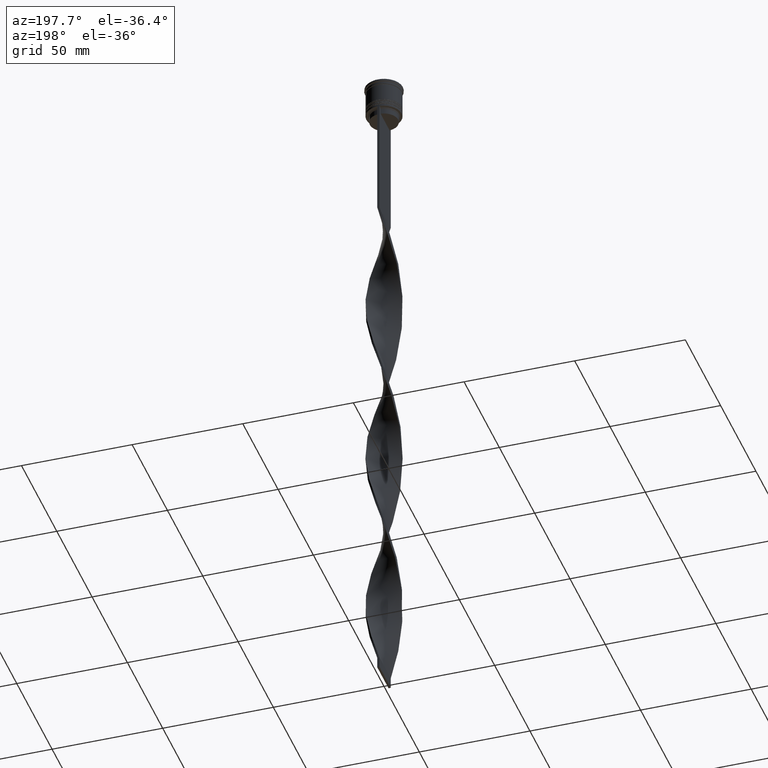
[diagram: clean part render]
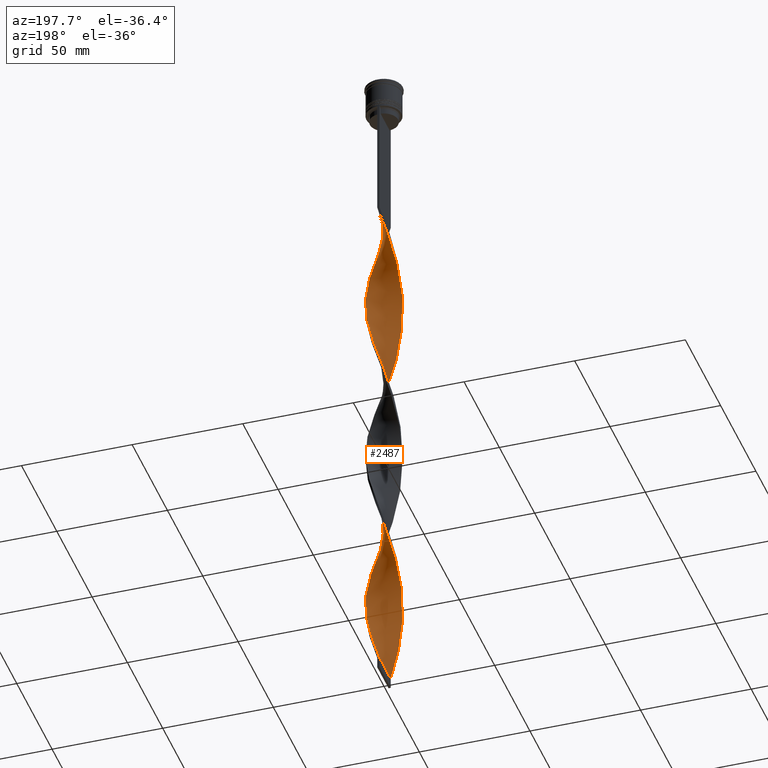
[diagram: same view with one face highlighted and labeled with its STEP entity id]
A machine part, auxiliary view. The second image highlights one B-rep face of the part: STEP entity #2487.
In plain terms, the highlighted face is a freeform B-spline surface patch.
Its self-contained STEP definition (entity closure, byte-faithful):
#10 = CARTESIAN_POINT ( 'NONE',  ( -6.427786469485477383, -4.830271518912636175, -286.9083333333333599 ) ) ;
#15 = CARTESIAN_POINT ( 'NONE',  ( -2.947664213147155543, -7.453943633173751415, -140.3000000000000114 ) ) ;
#26 = CARTESIAN_POINT ( 'NONE',  ( -7.920097061150121576, -1.385649445451607509, -274.8583333333332916 ) ) ;
#45 = CARTESIAN_POINT ( 'NONE',  ( -7.823289492240983023, 1.745319890619415837, -264.8166666666667197 ) ) ;
#47 = CARTESIAN_POINT ( 'NONE',  ( 7.221957428453231742, 3.534302299652429813, -118.2083333333333286 ) ) ;
#71 = CARTESIAN_POINT ( 'NONE',  ( 1.129613654596953065, 7.960649146587686964, -226.6583333333333883 ) ) ;
#73 = CARTESIAN_POINT ( 'NONE',  ( 1.385649445451610617, 7.920097061150129569, -142.3083333333333371 ) ) ;
#78 = CARTESIAN_POINT ( 'NONE',  ( -0.1296136545969472920, 8.039350853412308595, -70.00833333333335418 ) ) ;
#88 = CARTESIAN_POINT ( 'NONE',  ( 4.620552220368689511, -6.580156458821115883, -82.05833333333335133 ) ) ;
#91 = CARTESIAN_POINT ( 'NONE',  ( -5.593028810685829910, -5.776330198885572642, -290.9250000000000682 ) ) ;
#93 = CARTESIAN_POINT ( 'NONE',  ( 7.823289492240990128, 1.745319890619416059, -112.1833333333333229 ) ) ;
#98 = CARTESIAN_POINT ( 'NONE',  ( 7.605824193947274381, 2.607565948252397625, -198.5416666666666856 ) ) ;
#107 = CARTESIAN_POINT ( 'NONE',  ( 1.129613654596948180, -7.960649146587693181, -70.00833333333335418 ) ) ;
#110 = CARTESIAN_POINT ( 'NONE',  ( 1.745319890619417169, 7.823289492240981247, -224.6500000000000057 ) ) ;
#112 = CARTESIAN_POINT ( 'NONE',  ( -7.605824193947280598, 2.607565948252403398, -178.4583333333333428 ) ) ;
#122 = CARTESIAN_POINT ( 'NONE',  ( -6.178243328853340266, 5.106790515527257490, -252.7666666666667084 ) ) ;
#133 = CARTESIAN_POINT ( 'NONE',  ( -7.104270692806159637, 3.765275523391984347, -174.4416666666666629 ) ) ;
#143 = CARTESIAN_POINT ( 'NONE',  ( 7.762960627548699755, 1.996607696851999680, -196.5333333333333314 ) ) ;
#151 = CARTESIAN_POINT ( 'NONE',  ( 7.685929837894287076, 2.361026126641884382, -274.8583333333332916 ) ) ;
#155 = CARTESIAN_POINT ( 'NONE',  ( -7.685929837894287964, -2.361026126641879941, -194.5250000000000341 ) ) ;
#162 = CARTESIAN_POINT ( 'NONE',  ( 6.766028581145814513, 4.297773521152307374, -204.5666666666666629 ) ) ;
#170 = CARTESIAN_POINT ( 'NONE',  ( 6.766028581145818954, -4.297773521152313592, -252.7666666666667084 ) ) ;
#174 = CARTESIAN_POINT ( 'NONE',  ( 5.776330198885578859, 5.593028810685832575, -126.2416666666666600 ) ) ;
#197 = CARTESIAN_POINT ( 'NONE',  ( -7.920097061150128681, 1.385649445451607509, -182.4749999999999943 ) ) ;
#212 = CARTESIAN_POINT ( 'NONE',  ( 7.960649146587693181, 1.129613654596947736, -270.8416666666666401 ) ) ;
#215 = CARTESIAN_POINT ( 'NONE',  ( 6.766028581145818954, -4.297773521152313592, -92.09999999999999432 ) ) ;
#234 = CARTESIAN_POINT ( 'NONE',  ( 8.039350853412315701, -0.1296136545969482357, -266.8249999999999886 ) ) ;
#241 = CARTESIAN_POINT ( 'NONE',  ( -3.765275523391982571, 7.104270692806153420, -82.05833333333336554 ) ) ;
#242 = CARTESIAN_POINT ( 'NONE',  ( -7.920097061150122464, -1.385649445451607287, -274.8583333333332916 ) ) ;
#262 = CARTESIAN_POINT ( 'NONE',  ( 1.996607696852000124, -7.762960627548699755, -156.3666666666666458 ) ) ;
#278 = CARTESIAN_POINT ( 'NONE',  ( -6.178243328853346483, -5.106790515527260155, -204.5666666666666629 ) ) ;
#286 = CARTESIAN_POINT ( 'NONE',  ( 1.385649445451607065, -7.920097061150121576, -154.3583333333332916 ) ) ;
#298 = CARTESIAN_POINT ( 'NONE',  ( -1.385649445451607953, -7.920097061150128681, -222.6416666666667084 ) ) ;
#303 = VERTEX_POINT ( 'NONE', #2714 ) ;
#305 = CARTESIAN_POINT ( 'NONE',  ( -7.685929837894279082, 2.361026126641883938, -102.1416666666666941 ) ) ;
#325 = CARTESIAN_POINT ( 'NONE',  ( -4.297773521152309151, 6.766028581145814513, -84.06666666666667709 ) ) ;
#343 = CARTESIAN_POINT ( 'NONE',  ( 6.427786469485477383, 4.830271518912640616, -206.5750000000000171 ) ) ;
#348 = CARTESIAN_POINT ( 'NONE',  ( 0.1296136545969461817, -8.039350853412306819, -150.3416666666666401 ) ) ;
#354 = CARTESIAN_POINT ( 'NONE',  ( 6.427786469485482712, -4.830271518912641504, -90.09166666666666856 ) ) ;
#357 = CARTESIAN_POINT ( 'NONE',  ( -3.186420735822188544, 7.355047443376713900, -240.7166666666666686 ) ) ;
#359 = CARTESIAN_POINT ( 'NONE',  ( -3.765275523391984791, -7.104270692806157861, -214.6083333333333769 ) ) ;
#377 = CARTESIAN_POINT ( 'NONE',  ( -0.5000000000000011102, -7.999999999999996447, -309.0000000000000000 ) ) ;
#379 = CARTESIAN_POINT ( 'NONE',  ( 6.580156458821115883, 4.620552220368689511, -122.2250000000000085 ) ) ;
#403 = CARTESIAN_POINT ( 'NONE',  ( -5.303300858899103964, 6.010407640085652758, -248.7500000000000000 ) ) ;
#405 = CARTESIAN_POINT ( 'NONE',  ( -7.960649146587693181, -1.129613654596950401, -190.5083333333333542 ) ) ;
#410 = CARTESIAN_POINT ( 'NONE',  ( 5.593028810685831687, 5.776330198885569089, -210.5916666666666686 ) ) ;
#421 = CARTESIAN_POINT ( 'NONE',  ( -7.960649146587686964, 1.129613654596948402, -266.8249999999999886 ) ) ;
#423 = CARTESIAN_POINT ( 'NONE',  ( 2.607565948252399401, 7.605824193947282374, -138.2916666666667140 ) ) ;
#429 = CARTESIAN_POINT ( 'NONE',  ( 7.453943633173751415, -2.947664213147155987, -180.4666666666666686 ) ) ;
#438 = CARTESIAN_POINT ( 'NONE',  ( 7.453943633173759409, 2.947664213147156431, -116.2000000000000028 ) ) ;
#441 = CARTESIAN_POINT ( 'NONE',  ( -5.776330198885577083, -5.593028810685835239, -206.5750000000000171 ) ) ;
#447 = CARTESIAN_POINT ( 'NONE',  ( 7.355047443376714789, 3.186420735822187655, -200.5500000000000114 ) ) ;
#455 = CARTESIAN_POINT ( 'NONE',  ( 7.453943633173759409, 2.947664213147156431, -276.8666666666667311 ) ) ;
#460 = CARTESIAN_POINT ( 'NONE',  ( -1.745319890619415393, 7.823289492240990128, -152.3499999999999943 ) ) ;
#472 = CARTESIAN_POINT ( 'NONE',  ( 4.297773521152308263, -6.766028581145814513, -164.3999999999999773 ) ) ;
#480 = CARTESIAN_POINT ( 'NONE',  ( 6.427786469485483600, -4.830271518912642392, -90.09166666666666856 ) ) ;
#495 = CARTESIAN_POINT ( 'NONE',  ( 4.077427260010559884, -6.901056943637173369, -240.7166666666666686 ) ) ;
#498 = CARTESIAN_POINT ( 'NONE',  ( -6.427786469485480936, 4.830271518912646833, -170.4250000000000398 ) ) ;
#516 = CARTESIAN_POINT ( 'NONE',  ( 7.104270692806156973, -3.765275523391986567, -254.7749999999999773 ) ) ;
#522 = CARTESIAN_POINT ( 'NONE',  ( -7.960649146587693181, -1.129613654596950623, -190.5083333333333826 ) ) ;
#537 = CARTESIAN_POINT ( 'NONE',  ( 0.5000000000000001110, -8.000000000000003553, -68.00000000000000000 ) ) ;
#543 = CARTESIAN_POINT ( 'NONE',  ( 1.129613654596948402, -7.960649146587693181, -230.6750000000000114 ) ) ;
#549 = CARTESIAN_POINT ( 'NONE',  ( -2.361026126641883938, -7.685929837894279082, -142.3083333333333371 ) ) ;
#550 = CARTESIAN_POINT ( 'NONE',  ( -7.999999999999996447, 0.5000000000000006661, -268.8333333333333712 ) ) ;
#560 = CARTESIAN_POINT ( 'NONE',  ( 1.996607696852004121, 7.762960627548705084, -300.9666666666666401 ) ) ;
#568 = CARTESIAN_POINT ( 'NONE',  ( -1.996607696852001013, 7.762960627548698866, -76.03333333333334565 ) ) ;
#588 = CARTESIAN_POINT ( 'NONE',  ( -6.427786469485477383, -4.830271518912637063, -126.2416666666666600 ) ) ;
#597 = DIRECTION ( 'NONE',  ( 0.000000000000000000, 1.000000000000000000, 0.000000000000000000 ) ) ;
#598 = CARTESIAN_POINT ( 'NONE',  ( -0.4999999999999991673, 8.000000000000003553, -309.0000000000000000 ) ) ;
#601 = CARTESIAN_POINT ( 'NONE',  ( 4.297773521152314480, 6.766028581145818066, -292.9333333333333371 ) ) ;
#608 = CARTESIAN_POINT ( 'NONE',  ( 0.1296136545969461817, -8.039350853412308595, -150.3416666666666401 ) ) ;
#609 = CARTESIAN_POINT ( 'NONE',  ( -5.106790515527258378, -6.178243328853339378, -292.9333333333333371 ) ) ;
#616 = CARTESIAN_POINT ( 'NONE',  ( -7.221957428453224637, 3.534302299652428037, -98.12500000000001421 ) ) ;
#617 = CARTESIAN_POINT ( 'NONE',  ( 1.385649445451610617, 7.920097061150129569, -302.9750000000000227 ) ) ;
#627 = CARTESIAN_POINT ( 'NONE',  ( -4.077427260010557220, -6.901056943637166263, -136.2833333333333314 ) ) ;
#634 = CARTESIAN_POINT ( 'NONE',  ( -3.765275523391982126, 7.104270692806152532, -82.05833333333335133 ) ) ;
#648 = CARTESIAN_POINT ( 'NONE',  ( 4.620552220368685070, 6.580156458821110554, -214.6083333333333769 ) ) ;
#656 = CARTESIAN_POINT ( 'NONE',  ( -7.762960627548699755, -1.996607696852000569, -116.2000000000000028 ) ) ;
#665 = CARTESIAN_POINT ( 'NONE',  ( 3.534302299652430257, -7.221957428453231742, -78.04166666666667140 ) ) ;
#669 = CARTESIAN_POINT ( 'NONE',  ( 2.361026126641881717, 7.685929837894279970, -222.6416666666667084 ) ) ;
#672 = CARTESIAN_POINT ( 'NONE',  ( -6.010407640085656311, 5.303300858899110182, -168.4166666666666572 ) ) ;
#678 = CARTESIAN_POINT ( 'NONE',  ( -7.605824193947275269, -2.607565948252395405, -118.2083333333333286 ) ) ;
#689 = CARTESIAN_POINT ( 'NONE',  ( -2.361026126641883938, -7.685929837894279082, -302.9750000000000227 ) ) ;
#691 = CARTESIAN_POINT ( 'NONE',  ( 7.605824193947282374, -2.607565948252398957, -98.12500000000001421 ) ) ;
#704 = CARTESIAN_POINT ( 'NONE',  ( 5.593028810685831687, 5.776330198885569089, -210.5916666666666686 ) ) ;
#706 = CARTESIAN_POINT ( 'NONE',  ( -7.762960627548705084, 1.996607696852004565, -180.4666666666666686 ) ) ;
#715 = CARTESIAN_POINT ( 'NONE',  ( 4.077427260010558108, 6.901056943637166263, -216.6166666666666742 ) ) ;
#730 = CARTESIAN_POINT ( 'NONE',  ( 0.5000000000000001110, 7.999999999999996447, -228.6666666666666856 ) ) ;
#732 = CARTESIAN_POINT ( 'NONE',  ( 6.901056943637173369, 4.077427260010559884, -120.2166666666666686 ) ) ;
#738 = CARTESIAN_POINT ( 'NONE',  ( 1.745319890619417169, 7.823289492240981247, -224.6500000000000057 ) ) ;
#749 = CARTESIAN_POINT ( 'NONE',  ( 2.607565948252399401, 7.605824193947281486, -138.2916666666667140 ) ) ;
#752 = CARTESIAN_POINT ( 'NONE',  ( -8.039350853412315701, 0.1296136545969528431, -186.4916666666667027 ) ) ;
#758 = CARTESIAN_POINT ( 'NONE',  ( 7.920097061150122464, 1.385649445451603068, -194.5250000000000341 ) ) ;
#765 = CARTESIAN_POINT ( 'NONE',  ( 7.920097061150129569, -1.385649445451610173, -262.8083333333333371 ) ) ;
#769 = CARTESIAN_POINT ( 'NONE',  ( 7.762960627548705084, -1.996607696852003677, -100.1333333333333400 ) ) ;
#776 = CARTESIAN_POINT ( 'NONE',  ( 2.607565948252394517, -7.605824193947277045, -158.3750000000000284 ) ) ;
#786 = CARTESIAN_POINT ( 'NONE',  ( 2.361026126641884826, -7.685929837894286187, -234.6916666666666629 ) ) ;
#791 = CARTESIAN_POINT ( 'NONE',  ( 0.1296136545969488185, 8.039350853412315701, -146.3250000000000171 ) ) ;
#803 = ORIENTED_EDGE ( 'NONE', *, *, #867, .T. ) ;
#808 = CARTESIAN_POINT ( 'NONE',  ( 7.221957428453231742, 3.534302299652429813, -118.2083333333333144 ) ) ;
#825 = CARTESIAN_POINT ( 'NONE',  ( 3.186420735822192984, 7.355047443376719229, -136.2833333333333314 ) ) ;
#847 = CARTESIAN_POINT ( 'NONE',  ( -7.453943633173759409, -2.947664213147155543, -196.5333333333333314 ) ) ;
#856 = CARTESIAN_POINT ( 'NONE',  ( -1.996607696852001013, 7.762960627548698866, -236.6999999999999886 ) ) ;
#867 = EDGE_CURVE ( 'NONE', #2590, #915, #3186, .T. ) ;
#868 = CARTESIAN_POINT ( 'NONE',  ( 3.765275523391987011, 7.104270692806157861, -294.9416666666667197 ) ) ;
#876 = CARTESIAN_POINT ( 'NONE',  ( -1.129613654596948624, -7.960649146587686964, -306.9916666666667879 ) ) ;
#895 = CARTESIAN_POINT ( 'NONE',  ( -2.607565948252395849, 7.605824193947274381, -78.04166666666667140 ) ) ;
#896 = CARTESIAN_POINT ( 'NONE',  ( -6.010407640085651870, -5.303300858899103076, -288.9166666666666856 ) ) ;
#907 = CARTESIAN_POINT ( 'NONE',  ( 6.427786469485483600, -4.830271518912642392, -250.7583333333333258 ) ) ;
#915 = VERTEX_POINT ( 'NONE', #2445 ) ;
#917 = CARTESIAN_POINT ( 'NONE',  ( 7.453943633173751415, -2.947664213147155987, -180.4666666666666686 ) ) ;
#932 = CARTESIAN_POINT ( 'NONE',  ( 1.745319890619416503, -7.823289492240990128, -232.6833333333333371 ) ) ;
#940 = CARTESIAN_POINT ( 'NONE',  ( -5.776330198885572642, 5.593028810685829022, -90.09166666666666856 ) ) ;
#960 = CARTESIAN_POINT ( 'NONE',  ( 4.297773521152308263, -6.766028581145814513, -164.3999999999999773 ) ) ;
#979 = CARTESIAN_POINT ( 'NONE',  ( 6.010407640085652758, 5.303300858899102188, -208.5833333333333428 ) ) ;
#982 = CARTESIAN_POINT ( 'NONE',  ( -2.361026126641883938, 7.685929837894287076, -154.3583333333333201 ) ) ;
#990 = CARTESIAN_POINT ( 'NONE',  ( -3.534302299652428481, -7.221957428453224637, -138.2916666666667140 ) ) ;
#1004 = CARTESIAN_POINT ( 'NONE',  ( -4.620552220368686847, -6.580156458821108778, -294.9416666666667197 ) ) ;
#1006 = CARTESIAN_POINT ( 'NONE',  ( 8.039350853412315701, -0.1296136545969482634, -106.1583333333333456 ) ) ;
#1024 = CARTESIAN_POINT ( 'NONE',  ( 4.077427260010558108, 6.901056943637166263, -216.6166666666666742 ) ) ;
#1026 = CARTESIAN_POINT ( 'NONE',  ( -1.745319890619415393, 7.823289492240990128, -152.3499999999999943 ) ) ;
#1031 = CARTESIAN_POINT ( 'NONE',  ( 0.5000000000000001110, 7.999999999999996447, -68.00000000000000000 ) ) ;
#1042 = CARTESIAN_POINT ( 'NONE',  ( -7.221957428453224637, 3.534302299652428037, -258.7916666666666288 ) ) ;
#1044 = CARTESIAN_POINT ( 'NONE',  ( 5.776330198885578859, 5.593028810685832575, -126.2416666666666742 ) ) ;
#1053 = CARTESIAN_POINT ( 'NONE',  ( 6.178243328853339378, -5.106790515527258378, -172.4333333333333371 ) ) ;
#1064 = CARTESIAN_POINT ( 'NONE',  ( 2.947664213147156875, -7.453943633173757632, -76.03333333333334565 ) ) ;
#1066 = CARTESIAN_POINT ( 'NONE',  ( 3.534302299652430257, -7.221957428453231742, -78.04166666666667140 ) ) ;
#1069 = CARTESIAN_POINT ( 'NONE',  ( -7.221957428453230854, -3.534302299652431589, -198.5416666666666856 ) ) ;
#1077 = CARTESIAN_POINT ( 'NONE',  ( 7.685929837894279970, -2.361026126641881273, -182.4749999999999943 ) ) ;
#1086 = CARTESIAN_POINT ( 'NONE',  ( -8.000000000000003553, -0.4999999999999986122, -188.5000000000000000 ) ) ;
#1091 = CARTESIAN_POINT ( 'NONE',  ( 4.620552220368685070, 6.580156458821110554, -214.6083333333333769 ) ) ;
#1102 = CARTESIAN_POINT ( 'NONE',  ( -6.766028581145818066, 4.297773521152314480, -172.4333333333333371 ) ) ;
#1120 = CARTESIAN_POINT ( 'NONE',  ( 7.762960627548705084, -1.996607696852003677, -260.8000000000000114 ) ) ;
#1124 = CARTESIAN_POINT ( 'NONE',  ( -4.077427260010558996, 6.901056943637173369, -160.3833333333333258 ) ) ;
#1142 = CARTESIAN_POINT ( 'NONE',  ( -7.979723957281220414, 0.7576315500242798429, -184.4833333333333201 ) ) ;
#1157 = CARTESIAN_POINT ( 'NONE',  ( 4.830271518912643280, 6.427786469485483600, -290.9250000000000682 ) ) ;
#1164 = CARTESIAN_POINT ( 'NONE',  ( 7.960649146587686964, -1.129613654596952621, -186.4916666666667027 ) ) ;
#1175 = CARTESIAN_POINT ( 'NONE',  ( 5.303300858899110182, 6.010407640085656311, -288.9166666666666856 ) ) ;
#1178 = CARTESIAN_POINT ( 'NONE',  ( 6.901056943637173369, 4.077427260010559884, -280.8833333333333826 ) ) ;
#1188 = CARTESIAN_POINT ( 'NONE',  ( -7.453943633173751415, 2.947664213147155543, -100.1333333333333400 ) ) ;
#1189 = CARTESIAN_POINT ( 'NONE',  ( -0.5000000000000011102, -7.999999999999996447, -309.0000000000000000 ) ) ;
#1200 = CARTESIAN_POINT ( 'NONE',  ( 3.186420735822192984, 7.355047443376719229, -296.9499999999999886 ) ) ;
#1207 = CARTESIAN_POINT ( 'NONE',  ( 5.303300858899103076, -6.010407640085653647, -168.4166666666666572 ) ) ;
#1208 = CARTESIAN_POINT ( 'NONE',  ( -2.361026126641883938, -7.685929837894279082, -302.9750000000000227 ) ) ;
#1219 = CARTESIAN_POINT ( 'NONE',  ( 7.221957428453231742, 3.534302299652429813, -278.8750000000000000 ) ) ;
#1227 = CARTESIAN_POINT ( 'NONE',  ( 6.580156458821111443, -4.620552220368684182, -174.4416666666666629 ) ) ;
#1240 = CARTESIAN_POINT ( 'NONE',  ( 6.580156458821115883, 4.620552220368689511, -282.8916666666667084 ) ) ;
#1241 = CARTESIAN_POINT ( 'NONE',  ( -2.607565948252403842, -7.605824193947280598, -218.6250000000000284 ) ) ;
#1250 = CARTESIAN_POINT ( 'NONE',  ( -1.385649445451607953, 7.920097061150121576, -74.02500000000000568 ) ) ;
#1258 = CARTESIAN_POINT ( 'NONE',  ( -7.104270692806152532, -3.765275523391982126, -122.2250000000000085 ) ) ;
#1271 = CARTESIAN_POINT ( 'NONE',  ( -8.039350853412310371, -0.1296136545969467091, -110.1749999999999972 ) ) ;
#1272 = CARTESIAN_POINT ( 'NONE',  ( -1.745319890619416281, -7.823289492240981247, -304.9833333333333485 ) ) ;
#1276 = CARTESIAN_POINT ( 'NONE',  ( -2.361026126641883938, -7.685929837894279082, -142.3083333333333371 ) ) ;
#1287 = CARTESIAN_POINT ( 'NONE',  ( -7.104270692806153420, -3.765275523391982571, -282.8916666666667084 ) ) ;
#1289 = CARTESIAN_POINT ( 'NONE',  ( -6.580156458821117660, -4.620552220368685958, -202.5583333333333371 ) ) ;
#1296 = CARTESIAN_POINT ( 'NONE',  ( -5.303300858899103964, 6.010407640085652758, -88.08333333333334281 ) ) ;
#1301 = CARTESIAN_POINT ( 'NONE',  ( 0.5000000000000001110, -8.000000000000003553, -68.00000000000000000 ) ) ;
#1309 = CARTESIAN_POINT ( 'NONE',  ( -1.385649445451607953, 7.920097061150121576, -234.6916666666666629 ) ) ;
#1311 = CARTESIAN_POINT ( 'NONE',  ( -4.620552220368688623, 6.580156458821115883, -162.3916666666666799 ) ) ;
#1320 = CARTESIAN_POINT ( 'NONE',  ( -1.996607696852001013, 7.762960627548698866, -76.03333333333334565 ) ) ;
#1332 = CARTESIAN_POINT ( 'NONE',  ( -4.297773521152309151, 6.766028581145814513, -244.7333333333333201 ) ) ;
#1334 = CARTESIAN_POINT ( 'NONE',  ( -5.106790515527260155, 6.178243328853345595, -164.3999999999999773 ) ) ;
#1339 = CARTESIAN_POINT ( 'NONE',  ( -7.920097061150122464, -1.385649445451607287, -114.1916666666666771 ) ) ;
#1350 = CARTESIAN_POINT ( 'NONE',  ( -5.106790515527258378, -6.178243328853339378, -292.9333333333333371 ) ) ;
#1353 = CARTESIAN_POINT ( 'NONE',  ( 3.186420735822192984, 7.355047443376719229, -136.2833333333333314 ) ) ;
#1358 = CARTESIAN_POINT ( 'NONE',  ( 0.5000000000000001110, 7.999999999999996447, -228.6666666666666856 ) ) ;
#1371 = CARTESIAN_POINT ( 'NONE',  ( 7.104270692806155196, 3.765275523391978574, -202.5583333333333371 ) ) ;
#1373 = CARTESIAN_POINT ( 'NONE',  ( -7.979723957281220414, 0.7576315500242798429, -184.4833333333333201 ) ) ;
#1383 = CARTESIAN_POINT ( 'NONE',  ( -6.580156458821108778, 4.620552220368686847, -254.7749999999999773 ) ) ;
#1393 = CARTESIAN_POINT ( 'NONE',  ( 7.685929837894287076, 2.361026126641884382, -114.1916666666666771 ) ) ;
#1400 = CARTESIAN_POINT ( 'NONE',  ( 6.010407640085652758, 5.303300858899102188, -208.5833333333333428 ) ) ;
#1409 = CARTESIAN_POINT ( 'NONE',  ( 6.010407640085658088, -5.303300858899109294, -88.08333333333334281 ) ) ;
#1424 = CARTESIAN_POINT ( 'NONE',  ( 4.077427260010559884, -6.901056943637173369, -80.05000000000001137 ) ) ;
#1443 = CARTESIAN_POINT ( 'NONE',  ( 1.745319890619416503, -7.823289492240990128, -232.6833333333333371 ) ) ;
#1448 = CARTESIAN_POINT ( 'NONE',  ( 2.947664213147156875, -7.453943633173757632, -76.03333333333334565 ) ) ;
#1460 = CARTESIAN_POINT ( 'NONE',  ( 6.901056943637173369, 4.077427260010559884, -280.8833333333333826 ) ) ;
#1463 = CARTESIAN_POINT ( 'NONE',  ( 7.920097061150128681, -1.385649445451610173, -102.1416666666666941 ) ) ;
#1472 = CARTESIAN_POINT ( 'NONE',  ( -1.385649445451607731, 7.920097061150122464, -234.6916666666666629 ) ) ;
#1474 = CARTESIAN_POINT ( 'NONE',  ( -0.5000000000000011102, -7.999999999999996447, -309.0000000000000000 ) ) ;
#1482 = CARTESIAN_POINT ( 'NONE',  ( 0.5000000000000001110, -8.000000000000003553, -228.6666666666666856 ) ) ;
#1490 = CARTESIAN_POINT ( 'NONE',  ( -6.010407640085651870, -5.303300858899103076, -128.2500000000000000 ) ) ;
#1491 = CARTESIAN_POINT ( 'NONE',  ( -7.762960627548699755, -1.996607696852000569, -276.8666666666667311 ) ) ;
#1505 = CARTESIAN_POINT ( 'NONE',  ( -0.1296136545969532317, -8.039350853412315701, -226.6583333333333883 ) ) ;
#1515 = CARTESIAN_POINT ( 'NONE',  ( -7.823289492240983023, 1.745319890619415837, -104.1500000000000057 ) ) ;
#1516 = CARTESIAN_POINT ( 'NONE',  ( -3.534302299652428481, -7.221957428453224637, -298.9583333333333712 ) ) ;
#1525 = CARTESIAN_POINT ( 'NONE',  ( 4.297773521152314480, 6.766028581145818066, -292.9333333333333371 ) ) ;
#1528 = CARTESIAN_POINT ( 'NONE',  ( 7.960649146587693181, 1.129613654596947958, -270.8416666666666401 ) ) ;
#1537 = CARTESIAN_POINT ( 'NONE',  ( -7.355047443376713900, -3.186420735822188544, -120.2166666666666686 ) ) ;
#1549 = CARTESIAN_POINT ( 'NONE',  ( 3.534302299652430257, -7.221957428453231742, -238.7083333333333144 ) ) ;
#1562 = CARTESIAN_POINT ( 'NONE',  ( -4.297773521152309151, 6.766028581145814513, -84.06666666666667709 ) ) ;
#1563 = CARTESIAN_POINT ( 'NONE',  ( 4.830271518912642392, 6.427786469485482712, -290.9250000000000682 ) ) ;
#1569 = CARTESIAN_POINT ( 'NONE',  ( -5.303300858899111070, -6.010407640085655423, -208.5833333333333428 ) ) ;
#1579 = CARTESIAN_POINT ( 'NONE',  ( -7.979723957281215085, -0.7576315500242769563, -112.1833333333333229 ) ) ;
#1586 = CARTESIAN_POINT ( 'NONE',  ( -4.830271518912637063, 6.427786469485478271, -86.07500000000003126 ) ) ;
#1593 = CARTESIAN_POINT ( 'NONE',  ( 5.593028810685833463, -5.776330198885577971, -86.07500000000003126 ) ) ;
#1599 = CARTESIAN_POINT ( 'NONE',  ( -5.776330198885572642, 5.593028810685829022, -250.7583333333333258 ) ) ;
#1617 = CARTESIAN_POINT ( 'NONE',  ( 6.766028581145814513, 4.297773521152307374, -204.5666666666666629 ) ) ;
#1619 = CARTESIAN_POINT ( 'NONE',  ( -5.303300858899111070, -6.010407640085655423, -208.5833333333333428 ) ) ;
#1627 = CARTESIAN_POINT ( 'NONE',  ( -6.766028581145814513, -4.297773521152308263, -124.2333333333333343 ) ) ;
#1639 = ORIENTED_EDGE ( 'NONE', *, *, #3120, .F. ) ;
#1640 =( BOUNDED_CURVE ( )  B_SPLINE_CURVE ( 2, ( #1031, #78, #2257, #2591, #1320, #3504, #2872, #634, #1562, #1586, #1296, #3870, #3465, #3845, #1966, #616, #1948, #3823, #2567, #2608, #3528, #3484, #3229, #1339, #656, #678, #3887, #1258, #1627, #2855, #1883, #3146, #2834, #2528, #1902, #990, #15, #1276, #3210, #1926, #3189, #348, #2933, #2744, #4014, #776, #3317, #3569, #472, #1990, #3608, #3626, #1053, #2341, #3271, #1742, #429, #1077, #2997, #1164, #3590, #1697, #3944, #758, #143, #98, #447, #2433, #162, #3252, #1400, #410, #2669, #1091, #715, #4042, #2006, #1673, #738, #2357, #1358, #2048, #2625, #1472, #856, #3705, #2296, #1722, #2953, #3906, #2026, #2321, #122, #1383, #3293, #2121, #2651, #3389, #2978, #3928, #550, #1815, #3075, #242, #1491, #2763, #2808, #2206, #3141, #10, #896, #2499, #609, #1878, #2867, #1516, #2852, #1208, #1272, #876, #1189 ),
 .UNSPECIFIED., .F., .T. ) 
 B_SPLINE_CURVE_WITH_KNOTS ( ( 3, 2, 2, 2, 2, 2, 2, 2, 2, 2, 2, 2, 2, 2, 2, 2, 2, 2, 2, 2, 2, 2, 2, 2, 2, 2, 2, 2, 2, 2, 2, 2, 2, 2, 2, 2, 2, 2, 2, 2, 2, 2, 2, 2, 2, 2, 2, 2, 2, 2, 2, 2, 2, 2, 2, 2, 2, 2, 2, 2, 3 ),
 ( 0.000000000000000000, 0.01250000000000000243, 0.02500000000000000486, 0.03749999999999999861, 0.05000000000000000971, 0.06250000000000000000, 0.07499999999999999722, 0.08749999999999998057, 0.1000000000000000194, 0.1125000000000000028, 0.1250000000000000000, 0.1375000000000000111, 0.1499999999999999944, 0.1625000000000000056, 0.1749999999999999611, 0.1875000000000000000, 0.2000000000000000389, 0.2124999999999999944, 0.2250000000000000056, 0.2374999999999999611, 0.2500000000000000000, 0.2625000000000000111, 0.2750000000000000222, 0.2874999999999999778, 0.2999999999999999889, 0.3125000000000000000, 0.3250000000000000111, 0.3375000000000000777, 0.3499999999999999223, 0.3624999999999999889, 0.3750000000000000000, 0.3875000000000000111, 0.4000000000000000777, 0.4124999999999999223, 0.4249999999999999889, 0.4375000000000000000, 0.4500000000000000111, 0.4625000000000000777, 0.4749999999999999223, 0.4874999999999999889, 0.5000000000000000000, 0.5124999999999999556, 0.5250000000000000222, 0.5374999999999999778, 0.5500000000000000444, 0.5625000000000000000, 0.5749999999999999556, 0.5875000000000000222, 0.5999999999999999778, 0.6125000000000000444, 0.6250000000000000000, 0.6374999999999999556, 0.6500000000000000222, 0.6624999999999999778, 0.6750000000000001554, 0.6875000000000000000, 0.6999999999999998446, 0.7125000000000000222, 0.7249999999999999778, 0.7375000000000001554, 0.7500000000000000000 ),
 .UNSPECIFIED. ) 
 CURVE ( )  GEOMETRIC_REPRESENTATION_ITEM ( )  RATIONAL_B_SPLINE_CURVE ( ( 1.000000000000000000, 0.9969173337331279638, 1.000000000000000000, 0.9969173337331279638, 1.000000000000000000, 0.9969173337331279638, 1.000000000000000000, 0.9969173337331279638, 1.000000000000000000, 0.9969173337331279638, 1.000000000000000000, 0.9969173337331279638, 1.000000000000000000, 0.9969173337331279638, 1.000000000000000000, 0.9969173337331279638, 1.000000000000000000, 0.9969173337331279638, 1.000000000000000000, 0.9969173337331279638, 1.000000000000000000, 0.9969173337331279638, 1.000000000000000000, 0.9969173337331279638, 1.000000000000000000, 0.9969173337331279638, 1.000000000000000000, 0.9969173337331279638, 1.000000000000000000, 0.9969173337331279638, 1.000000000000000000, 0.9969173337331279638, 1.000000000000000000, 0.9969173337331279638, 1.000000000000000000, 0.9969173337331279638, 1.000000000000000000, 0.9969173337331279638, 1.000000000000000000, 0.9969173337331279638, 1.000000000000000000, 0.9969173337331279638, 1.000000000000000000, 0.9969173337331279638, 1.000000000000000000, 0.9969173337331279638, 1.000000000000000000, 0.9969173337331279638, 1.000000000000000000, 0.9969173337331279638, 1.000000000000000000, 0.9969173337331279638, 1.000000000000000000, 0.9969173337331279638, 1.000000000000000000, 0.9969173337331279638, 1.000000000000000000, 0.9969173337331279638, 1.000000000000000000, 0.9969173337331279638, 1.000000000000000000, 0.9969173337331279638, 1.000000000000000000, 0.9969173337331279638, 1.000000000000000000, 0.9969173337331279638, 1.000000000000000000, 0.9969173337331279638, 1.000000000000000000, 0.9969173337331279638, 1.000000000000000000, 0.9969173337331279638, 1.000000000000000000, 0.9969173337331279638, 1.000000000000000000, 0.9969173337331279638, 1.000000000000000000, 0.9969173337331279638, 1.000000000000000000, 0.9969173337331279638, 1.000000000000000000, 0.9969173337331279638, 1.000000000000000000, 0.9969173337331279638, 1.000000000000000000, 0.9969173337331279638, 1.000000000000000000, 0.9969173337331279638, 1.000000000000000000, 0.9969173337331279638, 1.000000000000000000, 0.9969173337331279638, 1.000000000000000000, 0.9969173337331279638, 1.000000000000000000, 0.9969173337331279638, 1.000000000000000000, 0.9969173337331279638, 1.000000000000000000, 0.9969173337331279638, 1.000000000000000000, 0.9969173337331279638, 1.000000000000000000, 0.9969173337331279638, 1.000000000000000000, 0.9969173337331279638, 1.000000000000000000, 0.9969173337331279638, 1.000000000000000000, 0.9969173337331279638, 1.000000000000000000, 0.9969173337331279638, 1.000000000000000000, 0.9969173337331279638, 1.000000000000000000, 0.9969173337331279638, 1.000000000000000000, 0.9969173337331279638, 1.000000000000000000, 0.9969173337331279638, 1.000000000000000000 ) ) 
 REPRESENTATION_ITEM ( '' )  );
#1641 = CARTESIAN_POINT ( 'NONE',  ( 7.685929837894279970, -2.361026126641881273, -182.4749999999999943 ) ) ;
#1643 = CARTESIAN_POINT ( 'NONE',  ( 4.297773521152314480, 6.766028581145818066, -132.2666666666666799 ) ) ;
#1665 = CARTESIAN_POINT ( 'NONE',  ( -0.7576315500242774004, 7.979723957281215085, -232.6833333333333371 ) ) ;
#1667 = CARTESIAN_POINT ( 'NONE',  ( -7.685929837894287964, -2.361026126641879941, -194.5250000000000341 ) ) ;
#1673 = CARTESIAN_POINT ( 'NONE',  ( 2.361026126641881717, 7.685929837894279970, -222.6416666666667084 ) ) ;
#1687 = CARTESIAN_POINT ( 'NONE',  ( -2.607565948252395849, 7.605824193947274381, -238.7083333333333144 ) ) ;
#1690 = CARTESIAN_POINT ( 'NONE',  ( -4.077427260010558996, 6.901056943637173369, -160.3833333333333258 ) ) ;
#1697 = CARTESIAN_POINT ( 'NONE',  ( 8.039350853412308595, 0.1296136545969493459, -190.5083333333333542 ) ) ;
#1704 = CARTESIAN_POINT ( 'NONE',  ( 7.605824193947282374, -2.607565948252398957, -258.7916666666666288 ) ) ;
#1710 = CARTESIAN_POINT ( 'NONE',  ( -1.129613654596947514, 7.960649146587694958, -150.3416666666666401 ) ) ;
#1713 = CARTESIAN_POINT ( 'NONE',  ( -4.830271518912645945, -6.427786469485479159, -210.5916666666666686 ) ) ;
#1722 = CARTESIAN_POINT ( 'NONE',  ( -3.765275523391982126, 7.104270692806152532, -242.7250000000000227 ) ) ;
#1733 = CARTESIAN_POINT ( 'NONE',  ( -3.534302299652429813, 7.221957428453232630, -158.3750000000000284 ) ) ;
#1742 = CARTESIAN_POINT ( 'NONE',  ( 7.221957428453222860, -3.534302299652431589, -178.4583333333333428 ) ) ;
#1748 = CARTESIAN_POINT ( 'NONE',  ( -0.1296136545969532317, -8.039350853412315701, -226.6583333333333883 ) ) ;
#1751 = CARTESIAN_POINT ( 'NONE',  ( 2.361026126641884826, -7.685929837894286187, -74.02500000000000568 ) ) ;
#1765 = CARTESIAN_POINT ( 'NONE',  ( 1.129613654596948180, -7.960649146587693181, -230.6750000000000114 ) ) ;
#1768 = CARTESIAN_POINT ( 'NONE',  ( -7.355047443376719229, 3.186420735822193429, -176.4499999999999886 ) ) ;
#1786 = CARTESIAN_POINT ( 'NONE',  ( 8.039350853412315701, -0.1296136545969482634, -266.8249999999999886 ) ) ;
#1791 = CARTESIAN_POINT ( 'NONE',  ( -7.823289492240991905, -1.745319890619414949, -192.5166666666666799 ) ) ;
#1796 = CARTESIAN_POINT ( 'NONE',  ( -0.4999999999999997780, 2.666666666666670515, -309.0000000000000000 ) ) ;
#1807 = CARTESIAN_POINT ( 'NONE',  ( 6.010407640085658088, -5.303300858899109294, -248.7500000000000000 ) ) ;
#1814 = CARTESIAN_POINT ( 'NONE',  ( 0.5000000000000001110, 7.999999999999996447, -68.00000000000000000 ) ) ;
#1815 = CARTESIAN_POINT ( 'NONE',  ( -8.039350853412308595, -0.1296136545969467369, -270.8416666666666401 ) ) ;
#1820 = CARTESIAN_POINT ( 'NONE',  ( 0.1296136545969487908, 8.039350853412315701, -306.9916666666667879 ) ) ;
#1822 = CARTESIAN_POINT ( 'NONE',  ( 0.7576315500242793988, 7.979723957281220414, -304.9833333333333485 ) ) ;
#1829 = CARTESIAN_POINT ( 'NONE',  ( -5.303300858899103964, 6.010407640085652758, -88.08333333333334281 ) ) ;
#1843 = VECTOR ( 'NONE', #597, 1000.000000000000000 ) ;
#1845 = CARTESIAN_POINT ( 'NONE',  ( -7.221957428453230854, -3.534302299652432033, -198.5416666666667140 ) ) ;
#1855 = CARTESIAN_POINT ( 'NONE',  ( -7.920097061150121576, -1.385649445451607509, -114.1916666666666771 ) ) ;
#1869 = CARTESIAN_POINT ( 'NONE',  ( 2.607565948252399401, 7.605824193947281486, -298.9583333333334281 ) ) ;
#1877 = CARTESIAN_POINT ( 'NONE',  ( -3.534302299652428481, -7.221957428453224637, -138.2916666666667140 ) ) ;
#1878 = CARTESIAN_POINT ( 'NONE',  ( -4.620552220368686847, -6.580156458821108778, -294.9416666666667197 ) ) ;
#1883 = CARTESIAN_POINT ( 'NONE',  ( -6.010407640085651870, -5.303300858899103076, -128.2500000000000000 ) ) ;
#1889 = CARTESIAN_POINT ( 'NONE',  ( 7.605824193947281486, -2.607565948252398957, -258.7916666666666288 ) ) ;
#1895 = FACE_OUTER_BOUND ( 'NONE', #3654, .T. ) ;
#1902 = CARTESIAN_POINT ( 'NONE',  ( -4.077427260010557220, -6.901056943637166263, -136.2833333333333314 ) ) ;
#1910 = EDGE_CURVE ( 'NONE', #3390, #915, #2600, .T. ) ;
#1919 = CARTESIAN_POINT ( 'NONE',  ( 7.762960627548699755, 1.996607696851999680, -196.5333333333333314 ) ) ;
#1926 = CARTESIAN_POINT ( 'NONE',  ( -1.129613654596948624, -7.960649146587686964, -146.3250000000000171 ) ) ;
#1934 = CARTESIAN_POINT ( 'NONE',  ( 6.010407640085658088, -5.303300858899109294, -88.08333333333334281 ) ) ;
#1939 = CARTESIAN_POINT ( 'NONE',  ( -6.178243328853340266, 5.106790515527257490, -252.7666666666667084 ) ) ;
#1942 = CARTESIAN_POINT ( 'NONE',  ( 7.920097061150129569, -1.385649445451610173, -102.1416666666666799 ) ) ;
#1948 = CARTESIAN_POINT ( 'NONE',  ( -7.453943633173751415, 2.947664213147155543, -100.1333333333333400 ) ) ;
#1957 = CARTESIAN_POINT ( 'NONE',  ( -1.745319890619416281, -7.823289492240981247, -304.9833333333333485 ) ) ;
#1959 = CARTESIAN_POINT ( 'NONE',  ( 7.453943633173759409, 2.947664213147156431, -116.2000000000000028 ) ) ;
#1966 = CARTESIAN_POINT ( 'NONE',  ( -6.901056943637166263, 4.077427260010557220, -96.11666666666667425 ) ) ;
#1970 = ORIENTED_EDGE ( 'NONE', *, *, #3279, .F. ) ;
#1974 = CARTESIAN_POINT ( 'NONE',  ( 0.5000000000000001110, -8.000000000000003553, -68.00000000000000000 ) ) ;
#1978 = CARTESIAN_POINT ( 'NONE',  ( -6.901056943637166263, 4.077427260010557220, -256.7833333333333599 ) ) ;
#1980 = CARTESIAN_POINT ( 'NONE',  ( -8.000000000000003553, -0.4999999999999986122, -188.5000000000000000 ) ) ;
#1990 = CARTESIAN_POINT ( 'NONE',  ( 4.830271518912636175, -6.427786469485478271, -166.4083333333333599 ) ) ;
#1993 = ORIENTED_EDGE ( 'NONE', *, *, #1910, .F. ) ;
#2000 = CARTESIAN_POINT ( 'NONE',  ( -6.766028581145814513, -4.297773521152308263, -284.9000000000000341 ) ) ;
#2002 = CARTESIAN_POINT ( 'NONE',  ( -3.534302299652429813, 7.221957428453232630, -158.3750000000000284 ) ) ;
#2006 = CARTESIAN_POINT ( 'NONE',  ( 2.947664213147156875, 7.453943633173751415, -220.6333333333333542 ) ) ;
#2018 = CARTESIAN_POINT ( 'NONE',  ( 1.129613654596948402, -7.960649146587693181, -70.00833333333335418 ) ) ;
#2021 = CARTESIAN_POINT ( 'NONE',  ( 3.765275523391986567, 7.104270692806156973, -134.2750000000000341 ) ) ;
#2026 = CARTESIAN_POINT ( 'NONE',  ( -5.303300858899103964, 6.010407640085652758, -248.7500000000000000 ) ) ;
#2035 = CARTESIAN_POINT ( 'NONE',  ( 7.979723957281222191, -0.7576315500242788437, -264.8166666666667197 ) ) ;
#2039 = CARTESIAN_POINT ( 'NONE',  ( 1.745319890619416503, -7.823289492240990128, -72.01666666666667993 ) ) ;
#2048 = CARTESIAN_POINT ( 'NONE',  ( -0.1296136545969472920, 8.039350853412308595, -230.6750000000000114 ) ) ;
#2056 = CARTESIAN_POINT ( 'NONE',  ( 3.534302299652430257, -7.221957428453231742, -238.7083333333333144 ) ) ;
#2060 = CARTESIAN_POINT ( 'NONE',  ( 5.303300858899110182, 6.010407640085656311, -128.2500000000000000 ) ) ;
#2076 = CARTESIAN_POINT ( 'NONE',  ( 6.901056943637173369, 4.077427260010559884, -120.2166666666666686 ) ) ;
#2091 = CARTESIAN_POINT ( 'NONE',  ( 7.605824193947281486, -2.607565948252398957, -98.12500000000002842 ) ) ;
#2116 = CARTESIAN_POINT ( 'NONE',  ( -6.901056943637174257, -4.077427260010558996, -200.5500000000000114 ) ) ;
#2121 = CARTESIAN_POINT ( 'NONE',  ( -7.221957428453224637, 3.534302299652428037, -258.7916666666666288 ) ) ;
#2132 = CARTESIAN_POINT ( 'NONE',  ( 6.766028581145818954, -4.297773521152313592, -252.7666666666667084 ) ) ;
#2141 = CARTESIAN_POINT ( 'NONE',  ( -3.186420735822188544, 7.355047443376713900, -80.05000000000001137 ) ) ;
#2153 = CARTESIAN_POINT ( 'NONE',  ( 8.000000000000003553, 0.4999999999999995559, -268.8333333333333712 ) ) ;
#2178 = CARTESIAN_POINT ( 'NONE',  ( 7.104270692806157861, -3.765275523391987011, -254.7749999999999488 ) ) ;
#2187 = CARTESIAN_POINT ( 'NONE',  ( -6.901056943637166263, 4.077427260010557220, -96.11666666666667425 ) ) ;
#2195 = CARTESIAN_POINT ( 'NONE',  ( 3.765275523391986567, 7.104270692806156973, -294.9416666666667197 ) ) ;
#2198 = CARTESIAN_POINT ( 'NONE',  ( 7.762960627548705084, -1.996607696852003677, -260.8000000000000114 ) ) ;
#2205 = CARTESIAN_POINT ( 'NONE',  ( -7.221957428453224637, 3.534302299652428037, -98.12500000000002842 ) ) ;
#2206 = CARTESIAN_POINT ( 'NONE',  ( -7.104270692806152532, -3.765275523391982126, -282.8916666666667084 ) ) ;
#2224 = CARTESIAN_POINT ( 'NONE',  ( 7.605824193947273493, 2.607565948252397625, -198.5416666666667140 ) ) ;
#2247 = CARTESIAN_POINT ( 'NONE',  ( 7.979723957281213309, 0.7576315500242758461, -192.5166666666666799 ) ) ;
#2250 = CARTESIAN_POINT ( 'NONE',  ( -0.4999999999999991673, 8.000000000000003553, -148.3333333333333428 ) ) ;
#2257 = CARTESIAN_POINT ( 'NONE',  ( -0.7576315500242774004, 7.979723957281215085, -72.01666666666667993 ) ) ;
#2269 = CARTESIAN_POINT ( 'NONE',  ( -4.077427260010557220, -6.901056943637166263, -296.9499999999999886 ) ) ;
#2272 = CARTESIAN_POINT ( 'NONE',  ( 0.1296136545969487908, 8.039350853412315701, -146.3250000000000171 ) ) ;
#2286 = CARTESIAN_POINT ( 'NONE',  ( 5.106790515527259267, 6.178243328853339378, -212.6000000000000227 ) ) ;
#2289 = CARTESIAN_POINT ( 'NONE',  ( -7.104270692806158749, 3.765275523391983903, -174.4416666666666629 ) ) ;
#2296 = CARTESIAN_POINT ( 'NONE',  ( -3.186420735822188544, 7.355047443376713900, -240.7166666666666686 ) ) ;
#2308 = CARTESIAN_POINT ( 'NONE',  ( 7.920097061150121576, 1.385649445451603068, -194.5250000000000341 ) ) ;
#2311 = CARTESIAN_POINT ( 'NONE',  ( 7.762960627548705084, -1.996607696852003677, -100.1333333333333400 ) ) ;
#2321 = CARTESIAN_POINT ( 'NONE',  ( -5.776330198885572642, 5.593028810685829022, -250.7583333333332973 ) ) ;
#2330 = CARTESIAN_POINT ( 'NONE',  ( 5.106790515527261043, -6.178243328853345595, -84.06666666666667709 ) ) ;
#2333 = CARTESIAN_POINT ( 'NONE',  ( 6.178243328853345595, 5.106790515527260155, -124.2333333333333343 ) ) ;
#2335 = CARTESIAN_POINT ( 'NONE',  ( -6.427786469485480048, 4.830271518912645945, -170.4250000000000398 ) ) ;
#2341 = CARTESIAN_POINT ( 'NONE',  ( 6.580156458821111443, -4.620552220368684182, -174.4416666666666629 ) ) ;
#2351 = CARTESIAN_POINT ( 'NONE',  ( 0.5000000000000001110, -8.000000000000003553, -68.00000000000000000 ) ) ;
#2357 = CARTESIAN_POINT ( 'NONE',  ( 1.129613654596953065, 7.960649146587686964, -226.6583333333333883 ) ) ;
#2365 = CARTESIAN_POINT ( 'NONE',  ( 0.5000000000000001110, -8.000000000000003553, -228.6666666666666856 ) ) ;
#2369 = CARTESIAN_POINT ( 'NONE',  ( 8.039350853412315701, -0.1296136545969482357, -106.1583333333333456 ) ) ;
#2391 = CARTESIAN_POINT ( 'NONE',  ( -4.620552220368688623, 6.580156458821115883, -162.3916666666666799 ) ) ;
#2406 = CARTESIAN_POINT ( 'NONE',  ( 4.620552220368689511, -6.580156458821115883, -82.05833333333336554 ) ) ;
#2425 = CARTESIAN_POINT ( 'NONE',  ( -5.776330198885577083, -5.593028810685835239, -206.5750000000000171 ) ) ;
#2433 = CARTESIAN_POINT ( 'NONE',  ( 7.104270692806154308, 3.765275523391978574, -202.5583333333333371 ) ) ;
#2445 = CARTESIAN_POINT ( 'NONE',  ( -0.4999999999999991673, 8.000000000000003553, -309.0000000000000000 ) ) ;
#2449 = CARTESIAN_POINT ( 'NONE',  ( -3.765275523391985235, -7.104270692806158749, -214.6083333333333769 ) ) ;
#2458 = CARTESIAN_POINT ( 'NONE',  ( -1.129613654596948846, -7.960649146587686964, -146.3250000000000171 ) ) ;
#2467 = CARTESIAN_POINT ( 'NONE',  ( 7.920097061150128681, -1.385649445451610173, -262.8083333333332803 ) ) ;
#2475 = CARTESIAN_POINT ( 'NONE',  ( 6.178243328853339378, -5.106790515527258378, -172.4333333333333371 ) ) ;
#2483 = CARTESIAN_POINT ( 'NONE',  ( 5.776330198885578859, 5.593028810685832575, -286.9083333333333599 ) ) ;
#2486 = CARTESIAN_POINT ( 'NONE',  ( 5.776330198885578859, 5.593028810685832575, -286.9083333333334167 ) ) ;
#2487 = ADVANCED_FACE ( 'NONE', ( #1895 ), #4036, .T. ) ;
#2497 = CARTESIAN_POINT ( 'NONE',  ( -7.104270692806153420, -3.765275523391982571, -122.2250000000000085 ) ) ;
#2499 = CARTESIAN_POINT ( 'NONE',  ( -5.593028810685829910, -5.776330198885572642, -290.9250000000000682 ) ) ;
#2512 = CARTESIAN_POINT ( 'NONE',  ( 6.178243328853345595, 5.106790515527260155, -284.9000000000000341 ) ) ;
#2522 = CARTESIAN_POINT ( 'NONE',  ( -7.999999999999996447, 0.5000000000000006661, -108.1666666666666714 ) ) ;
#2528 = CARTESIAN_POINT ( 'NONE',  ( -4.620552220368686847, -6.580156458821108778, -134.2750000000000341 ) ) ;
#2539 = CARTESIAN_POINT ( 'NONE',  ( -1.745319890619416281, -7.823289492240981247, -144.3166666666666629 ) ) ;
#2557 = CARTESIAN_POINT ( 'NONE',  ( 7.999999999999996447, -0.5000000000000016653, -188.5000000000000000 ) ) ;
#2559 = CARTESIAN_POINT ( 'NONE',  ( -3.186420735822193873, -7.355047443376719229, -216.6166666666666742 ) ) ;
#2567 = CARTESIAN_POINT ( 'NONE',  ( -7.823289492240983023, 1.745319890619415837, -104.1500000000000057 ) ) ;
#2580 = CARTESIAN_POINT ( 'NONE',  ( -7.605824193947274381, -2.607565948252395405, -278.8750000000000000 ) ) ;
#2583 = CARTESIAN_POINT ( 'NONE',  ( 7.685929837894287076, 2.361026126641884382, -114.1916666666666771 ) ) ;
#2590 = VERTEX_POINT ( 'NONE', #1301 ) ;
#2591 = CARTESIAN_POINT ( 'NONE',  ( -1.385649445451607731, 7.920097061150122464, -74.02500000000000568 ) ) ;
#2600 = B_SPLINE_CURVE_WITH_KNOTS ( 'NONE', 3,
 ( #1474, #3092, #1796, #3681 ),
 .UNSPECIFIED., .F., .F.,
 ( 4, 4 ),
 ( 0.000000000000000000, 1.000000000000000000 ),
 .UNSPECIFIED. ) ;
#2601 = CARTESIAN_POINT ( 'NONE',  ( -6.580156458821108778, 4.620552220368686847, -254.7749999999999488 ) ) ;
#2603 = CARTESIAN_POINT ( 'NONE',  ( 5.303300858899110182, 6.010407640085656311, -128.2500000000000000 ) ) ;
#2608 = CARTESIAN_POINT ( 'NONE',  ( -7.960649146587686964, 1.129613654596948180, -106.1583333333333456 ) ) ;
#2617 = CARTESIAN_POINT ( 'NONE',  ( -3.534302299652428481, -7.221957428453224637, -298.9583333333334281 ) ) ;
#2619 = CARTESIAN_POINT ( 'NONE',  ( -7.920097061150129569, 1.385649445451607287, -182.4749999999999943 ) ) ;
#2625 = CARTESIAN_POINT ( 'NONE',  ( -0.7576315500242774004, 7.979723957281215085, -232.6833333333333371 ) ) ;
#2638 = CARTESIAN_POINT ( 'NONE',  ( -0.1296136545969472642, 8.039350853412310371, -230.6750000000000114 ) ) ;
#2640 = CARTESIAN_POINT ( 'NONE',  ( -6.901056943637174257, -4.077427260010558996, -200.5500000000000114 ) ) ;
#2651 = CARTESIAN_POINT ( 'NONE',  ( -7.453943633173751415, 2.947664213147155543, -260.8000000000000114 ) ) ;
#2657 = CARTESIAN_POINT ( 'NONE',  ( 2.947664213147156875, -7.453943633173757632, -236.6999999999999886 ) ) ;
#2661 = CARTESIAN_POINT ( 'NONE',  ( 0.7576315500242793988, 7.979723957281220414, -144.3166666666666629 ) ) ;
#2669 = CARTESIAN_POINT ( 'NONE',  ( 5.106790515527259267, 6.178243328853339378, -212.6000000000000227 ) ) ;
#2678 = CARTESIAN_POINT ( 'NONE',  ( 7.221957428453231742, 3.534302299652429813, -278.8750000000000000 ) ) ;
#2681 = CARTESIAN_POINT ( 'NONE',  ( -5.106790515527260155, 6.178243328853345595, -164.3999999999999773 ) ) ;
#2695 = CARTESIAN_POINT ( 'NONE',  ( 6.010407640085658088, -5.303300858899109294, -248.7500000000000000 ) ) ;
#2701 = CARTESIAN_POINT ( 'NONE',  ( -2.947664213147155987, 7.453943633173759409, -156.3666666666666458 ) ) ;
#2714 = CARTESIAN_POINT ( 'NONE',  ( 0.5000000000000001110, 7.999999999999996447, -68.00000000000000000 ) ) ;
#2721 = CARTESIAN_POINT ( 'NONE',  ( 7.355047443376719229, -3.186420735822192540, -96.11666666666667425 ) ) ;
#2734 = CARTESIAN_POINT ( 'NONE',  ( 6.580156458821115883, 4.620552220368689511, -282.8916666666667084 ) ) ;
#2737 = CARTESIAN_POINT ( 'NONE',  ( 5.106790515527261043, -6.178243328853345595, -84.06666666666667709 ) ) ;
#2744 = CARTESIAN_POINT ( 'NONE',  ( 1.385649445451606843, -7.920097061150122464, -154.3583333333333201 ) ) ;
#2754 = CARTESIAN_POINT ( 'NONE',  ( 2.947664213147156875, -7.453943633173757632, -236.6999999999999886 ) ) ;
#2763 = CARTESIAN_POINT ( 'NONE',  ( -7.605824193947275269, -2.607565948252395405, -278.8750000000000000 ) ) ;
#2774 = CARTESIAN_POINT ( 'NONE',  ( 1.996607696852004121, 7.762960627548705084, -300.9666666666666401 ) ) ;
#2777 = CARTESIAN_POINT ( 'NONE',  ( 4.620552220368689511, -6.580156458821115883, -242.7250000000000227 ) ) ;
#2786 = CARTESIAN_POINT ( 'NONE',  ( -4.830271518912637951, 6.427786469485478271, -86.07500000000003126 ) ) ;
#2798 = CARTESIAN_POINT ( 'NONE',  ( 5.106790515527261043, -6.178243328853345595, -244.7333333333333201 ) ) ;
#2807 = CARTESIAN_POINT ( 'NONE',  ( 3.765275523391981682, -7.104270692806153420, -162.3916666666666799 ) ) ;
#2808 = CARTESIAN_POINT ( 'NONE',  ( -7.355047443376713900, -3.186420735822188544, -280.8833333333333826 ) ) ;
#2820 = CARTESIAN_POINT ( 'NONE',  ( 4.077427260010559884, -6.901056943637173369, -240.7166666666666686 ) ) ;
#2828 = CARTESIAN_POINT ( 'NONE',  ( -0.7576315500242774004, 7.979723957281215085, -72.01666666666667993 ) ) ;
#2829 = CARTESIAN_POINT ( 'NONE',  ( -0.5000000000000011102, -7.999999999999996447, -309.0000000000000000 ) ) ;
#2834 = CARTESIAN_POINT ( 'NONE',  ( -5.106790515527258378, -6.178243328853339378, -132.2666666666666799 ) ) ;
#2851 = CARTESIAN_POINT ( 'NONE',  ( -2.947664213147155543, -7.453943633173751415, -140.3000000000000114 ) ) ;
#2852 = CARTESIAN_POINT ( 'NONE',  ( -2.947664213147155543, -7.453943633173751415, -300.9666666666666401 ) ) ;
#2855 = CARTESIAN_POINT ( 'NONE',  ( -6.427786469485477383, -4.830271518912636175, -126.2416666666666742 ) ) ;
#2866 = CARTESIAN_POINT ( 'NONE',  ( -7.685929837894279082, 2.361026126641883938, -262.8083333333332803 ) ) ;
#2867 = CARTESIAN_POINT ( 'NONE',  ( -4.077427260010557220, -6.901056943637166263, -296.9499999999999886 ) ) ;
#2872 = CARTESIAN_POINT ( 'NONE',  ( -3.186420735822188544, 7.355047443376713900, -80.05000000000001137 ) ) ;
#2883 = CARTESIAN_POINT ( 'NONE',  ( -8.039350853412310371, -0.1296136545969467091, -270.8416666666666401 ) ) ;
#2885 = CARTESIAN_POINT ( 'NONE',  ( 7.355047443376719229, -3.186420735822192540, -96.11666666666667425 ) ) ;
#2908 = CARTESIAN_POINT ( 'NONE',  ( 7.823289492240981247, -1.745319890619416725, -184.4833333333333201 ) ) ;
#2911 = CARTESIAN_POINT ( 'NONE',  ( -1.129613654596947514, 7.960649146587694958, -150.3416666666666401 ) ) ;
#2924 = CARTESIAN_POINT ( 'NONE',  ( 4.077427260010559884, -6.901056943637173369, -80.05000000000001137 ) ) ;
#2927 = CARTESIAN_POINT ( 'NONE',  ( -7.979723957281215085, -0.7576315500242769563, -272.8500000000000227 ) ) ;
#2929 = CARTESIAN_POINT ( 'NONE',  ( 8.000000000000003553, 0.4999999999999995559, -108.1666666666666714 ) ) ;
#2933 = CARTESIAN_POINT ( 'NONE',  ( 0.7576315500242762901, -7.979723957281215085, -152.3499999999999943 ) ) ;
#2944 = CARTESIAN_POINT ( 'NONE',  ( -6.010407640085651870, -5.303300858899103076, -288.9166666666666856 ) ) ;
#2947 = CARTESIAN_POINT ( 'NONE',  ( -7.355047443376719229, 3.186420735822193429, -176.4499999999999886 ) ) ;
#2953 = CARTESIAN_POINT ( 'NONE',  ( -4.297773521152309151, 6.766028581145814513, -244.7333333333333201 ) ) ;
#2966 = CARTESIAN_POINT ( 'NONE',  ( 6.580156458821115883, 4.620552220368689511, -122.2250000000000085 ) ) ;
#2968 = CARTESIAN_POINT ( 'NONE',  ( 7.979723957281222191, -0.7576315500242788437, -104.1500000000000057 ) ) ;
#2978 = CARTESIAN_POINT ( 'NONE',  ( -7.823289492240983023, 1.745319890619415837, -264.8166666666667197 ) ) ;
#2987 = CARTESIAN_POINT ( 'NONE',  ( 4.620552220368689511, -6.580156458821115883, -242.7250000000000227 ) ) ;
#2990 = CARTESIAN_POINT ( 'NONE',  ( -7.762960627548705084, 1.996607696852004565, -180.4666666666666686 ) ) ;
#2997 = CARTESIAN_POINT ( 'NONE',  ( 7.823289492240981247, -1.745319890619416725, -184.4833333333333201 ) ) ;
#3007 = CARTESIAN_POINT ( 'NONE',  ( 1.996607696852004121, 7.762960627548705084, -140.3000000000000114 ) ) ;
#3027 = CARTESIAN_POINT ( 'NONE',  ( -7.605824193947279710, 2.607565948252403398, -178.4583333333333144 ) ) ;
#3045 = CARTESIAN_POINT ( 'NONE',  ( 8.000000000000003553, 0.4999999999999995559, -268.8333333333333712 ) ) ;
#3049 = CARTESIAN_POINT ( 'NONE',  ( 4.297773521152314480, 6.766028581145818066, -132.2666666666666799 ) ) ;
#3067 = CARTESIAN_POINT ( 'NONE',  ( 7.453943633173759409, 2.947664213147156431, -276.8666666666667311 ) ) ;
#3074 = CARTESIAN_POINT ( 'NONE',  ( -0.1296136545969472642, 8.039350853412310371, -70.00833333333335418 ) ) ;
#3075 = CARTESIAN_POINT ( 'NONE',  ( -7.979723957281215085, -0.7576315500242769563, -272.8500000000000227 ) ) ;
#3085 = CARTESIAN_POINT ( 'NONE',  ( -0.4999999999999991673, 8.000000000000003553, -309.0000000000000000 ) ) ;
#3092 = CARTESIAN_POINT ( 'NONE',  ( -0.5000000000000004441, -2.666666666666663410, -309.0000000000000000 ) ) ;
#3093 = CARTESIAN_POINT ( 'NONE',  ( 0.7576315500242762901, -7.979723957281215085, -152.3499999999999943 ) ) ;
#3108 = CARTESIAN_POINT ( 'NONE',  ( -6.580156458821117660, -4.620552220368685958, -202.5583333333333371 ) ) ;
#3117 = CARTESIAN_POINT ( 'NONE',  ( -0.5000000000000011102, -7.999999999999996447, -148.3333333333333428 ) ) ;
#3120 = EDGE_CURVE ( 'NONE', #2590, #303, #3376, .T. ) ;
#3127 = CARTESIAN_POINT ( 'NONE',  ( 2.607565948252399401, 7.605824193947282374, -298.9583333333333712 ) ) ;
#3130 = CARTESIAN_POINT ( 'NONE',  ( 7.355047443376719229, -3.186420735822192540, -256.7833333333333599 ) ) ;
#3140 = CARTESIAN_POINT ( 'NONE',  ( -6.766028581145814513, -4.297773521152308263, -124.2333333333333343 ) ) ;
#3141 = CARTESIAN_POINT ( 'NONE',  ( -6.766028581145814513, -4.297773521152308263, -284.9000000000000341 ) ) ;
#3146 = CARTESIAN_POINT ( 'NONE',  ( -5.593028810685829910, -5.776330198885572642, -130.2583333333333542 ) ) ;
#3147 = CARTESIAN_POINT ( 'NONE',  ( 0.7576315500242793988, 7.979723957281220414, -304.9833333333333485 ) ) ;
#3152 = CARTESIAN_POINT ( 'NONE',  ( -1.996607696852005454, -7.762960627548705084, -220.6333333333333542 ) ) ;
#3160 = CARTESIAN_POINT ( 'NONE',  ( -7.762960627548699755, -1.996607696852000569, -116.2000000000000028 ) ) ;
#3183 = CARTESIAN_POINT ( 'NONE',  ( -7.762960627548699755, -1.996607696852000569, -276.8666666666667311 ) ) ;
#3186 =( BOUNDED_CURVE ( )  B_SPLINE_CURVE ( 2, ( #1974, #107, #3238, #3516, #1064, #665, #2924, #88, #2330, #1593, #1934, #354, #3221, #3603, #2885, #691, #2311, #1942, #2968, #1006, #2929, #3922, #93, #2583, #1959, #47, #732, #379, #3899, #1044, #2603, #3837, #1643, #2021, #1353, #423, #3266, #73, #3560, #2272, #2250, #2911, #1026, #982, #3523, #2002, #1690, #1311, #1334, #3542, #672, #2335, #3883, #2289, #2947, #112, #706, #2619, #1373, #752, #1980, #405, #3245, #1667, #3288, #1069, #2640, #1289, #3584, #441, #1619, #1713, #3203, #359, #2559, #1241, #3512, #3301, #3969, #1748, #2365, #1765, #1443, #786, #2657, #2056, #495, #2987, #3340, #3323, #2695, #3615, #170, #516, #3989, #1704, #1120, #765, #2035, #1786, #3045, #212, #4004, #151, #455, #2678, #1460, #2734, #3280, #2483, #1175, #1563, #1525, #2195, #4111, #3127, #2774, #617, #3147, #1820, #598 ),
 .UNSPECIFIED., .F., .T. ) 
 B_SPLINE_CURVE_WITH_KNOTS ( ( 3, 2, 2, 2, 2, 2, 2, 2, 2, 2, 2, 2, 2, 2, 2, 2, 2, 2, 2, 2, 2, 2, 2, 2, 2, 2, 2, 2, 2, 2, 2, 2, 2, 2, 2, 2, 2, 2, 2, 2, 2, 2, 2, 2, 2, 2, 2, 2, 2, 2, 2, 2, 2, 2, 2, 2, 2, 2, 2, 2, 3 ),
 ( 0.000000000000000000, 0.01250000000000000243, 0.02500000000000000486, 0.03749999999999999861, 0.05000000000000000971, 0.06250000000000000000, 0.07499999999999999722, 0.08749999999999998057, 0.1000000000000000194, 0.1125000000000000028, 0.1250000000000000000, 0.1375000000000000111, 0.1499999999999999944, 0.1625000000000000056, 0.1749999999999999611, 0.1875000000000000000, 0.2000000000000000389, 0.2124999999999999944, 0.2250000000000000056, 0.2374999999999999611, 0.2500000000000000000, 0.2625000000000000111, 0.2750000000000000222, 0.2874999999999999778, 0.2999999999999999889, 0.3125000000000000000, 0.3250000000000000111, 0.3375000000000000777, 0.3499999999999999223, 0.3624999999999999889, 0.3750000000000000000, 0.3875000000000000111, 0.4000000000000000777, 0.4124999999999999223, 0.4249999999999999889, 0.4375000000000000000, 0.4500000000000000111, 0.4625000000000000777, 0.4749999999999999223, 0.4874999999999999889, 0.5000000000000000000, 0.5124999999999999556, 0.5250000000000000222, 0.5374999999999999778, 0.5500000000000000444, 0.5625000000000000000, 0.5749999999999999556, 0.5875000000000000222, 0.5999999999999999778, 0.6125000000000000444, 0.6250000000000000000, 0.6374999999999999556, 0.6500000000000000222, 0.6624999999999999778, 0.6750000000000001554, 0.6875000000000000000, 0.6999999999999998446, 0.7125000000000000222, 0.7249999999999999778, 0.7375000000000001554, 0.7500000000000000000 ),
 .UNSPECIFIED. ) 
 CURVE ( )  GEOMETRIC_REPRESENTATION_ITEM ( )  RATIONAL_B_SPLINE_CURVE ( ( 1.000000000000000000, 0.9969173337331279638, 1.000000000000000000, 0.9969173337331279638, 1.000000000000000000, 0.9969173337331279638, 1.000000000000000000, 0.9969173337331279638, 1.000000000000000000, 0.9969173337331279638, 1.000000000000000000, 0.9969173337331279638, 1.000000000000000000, 0.9969173337331279638, 1.000000000000000000, 0.9969173337331279638, 1.000000000000000000, 0.9969173337331279638, 1.000000000000000000, 0.9969173337331279638, 1.000000000000000000, 0.9969173337331279638, 1.000000000000000000, 0.9969173337331279638, 1.000000000000000000, 0.9969173337331279638, 1.000000000000000000, 0.9969173337331279638, 1.000000000000000000, 0.9969173337331279638, 1.000000000000000000, 0.9969173337331279638, 1.000000000000000000, 0.9969173337331279638, 1.000000000000000000, 0.9969173337331279638, 1.000000000000000000, 0.9969173337331279638, 1.000000000000000000, 0.9969173337331279638, 1.000000000000000000, 0.9969173337331279638, 1.000000000000000000, 0.9969173337331279638, 1.000000000000000000, 0.9969173337331279638, 1.000000000000000000, 0.9969173337331279638, 1.000000000000000000, 0.9969173337331279638, 1.000000000000000000, 0.9969173337331279638, 1.000000000000000000, 0.9969173337331279638, 1.000000000000000000, 0.9969173337331279638, 1.000000000000000000, 0.9969173337331279638, 1.000000000000000000, 0.9969173337331279638, 1.000000000000000000, 0.9969173337331279638, 1.000000000000000000, 0.9969173337331279638, 1.000000000000000000, 0.9969173337331279638, 1.000000000000000000, 0.9969173337331279638, 1.000000000000000000, 0.9969173337331279638, 1.000000000000000000, 0.9969173337331279638, 1.000000000000000000, 0.9969173337331279638, 1.000000000000000000, 0.9969173337331279638, 1.000000000000000000, 0.9969173337331279638, 1.000000000000000000, 0.9969173337331279638, 1.000000000000000000, 0.9969173337331279638, 1.000000000000000000, 0.9969173337331279638, 1.000000000000000000, 0.9969173337331279638, 1.000000000000000000, 0.9969173337331279638, 1.000000000000000000, 0.9969173337331279638, 1.000000000000000000, 0.9969173337331279638, 1.000000000000000000, 0.9969173337331279638, 1.000000000000000000, 0.9969173337331279638, 1.000000000000000000, 0.9969173337331279638, 1.000000000000000000, 0.9969173337331279638, 1.000000000000000000, 0.9969173337331279638, 1.000000000000000000, 0.9969173337331279638, 1.000000000000000000, 0.9969173337331279638, 1.000000000000000000, 0.9969173337331279638, 1.000000000000000000, 0.9969173337331279638, 1.000000000000000000, 0.9969173337331279638, 1.000000000000000000, 0.9969173337331279638, 1.000000000000000000, 0.9969173337331279638, 1.000000000000000000, 0.9969173337331279638, 1.000000000000000000, 0.9969173337331279638, 1.000000000000000000 ) ) 
 REPRESENTATION_ITEM ( '' )  );
#3189 = CARTESIAN_POINT ( 'NONE',  ( -0.5000000000000011102, -7.999999999999996447, -148.3333333333333428 ) ) ;
#3201 = CARTESIAN_POINT ( 'NONE',  ( -7.999999999999996447, 0.5000000000000006661, -268.8333333333333712 ) ) ;
#3203 = CARTESIAN_POINT ( 'NONE',  ( -4.297773521152315368, -6.766028581145818066, -212.6000000000000227 ) ) ;
#3210 = CARTESIAN_POINT ( 'NONE',  ( -1.745319890619416281, -7.823289492240981247, -144.3166666666666629 ) ) ;
#3219 = CARTESIAN_POINT ( 'NONE',  ( -1.129613654596948846, -7.960649146587686964, -306.9916666666667311 ) ) ;
#3221 = CARTESIAN_POINT ( 'NONE',  ( 6.766028581145818954, -4.297773521152313592, -92.09999999999999432 ) ) ;
#3229 = CARTESIAN_POINT ( 'NONE',  ( -7.979723957281215085, -0.7576315500242769563, -112.1833333333333229 ) ) ;
#3238 = CARTESIAN_POINT ( 'NONE',  ( 1.745319890619416503, -7.823289492240990128, -72.01666666666667993 ) ) ;
#3242 = CARTESIAN_POINT ( 'NONE',  ( -3.765275523391982571, 7.104270692806153420, -242.7250000000000227 ) ) ;
#3245 = CARTESIAN_POINT ( 'NONE',  ( -7.823289492240991905, -1.745319890619414949, -192.5166666666666799 ) ) ;
#3252 = CARTESIAN_POINT ( 'NONE',  ( 6.427786469485477383, 4.830271518912639728, -206.5750000000000171 ) ) ;
#3264 = CARTESIAN_POINT ( 'NONE',  ( -1.996607696852001013, 7.762960627548698866, -236.6999999999999886 ) ) ;
#3266 = CARTESIAN_POINT ( 'NONE',  ( 1.996607696852004121, 7.762960627548705084, -140.3000000000000114 ) ) ;
#3271 = CARTESIAN_POINT ( 'NONE',  ( 6.901056943637166263, -4.077427260010558108, -176.4499999999999886 ) ) ;
#3279 = EDGE_CURVE ( 'NONE', #303, #3390, #1640, .T. ) ;
#3280 = CARTESIAN_POINT ( 'NONE',  ( 6.178243328853345595, 5.106790515527260155, -284.9000000000000341 ) ) ;
#3285 = CARTESIAN_POINT ( 'NONE',  ( -0.4999999999999991673, 8.000000000000003553, -148.3333333333333428 ) ) ;
#3288 = CARTESIAN_POINT ( 'NONE',  ( -7.453943633173759409, -2.947664213147155543, -196.5333333333333314 ) ) ;
#3293 = CARTESIAN_POINT ( 'NONE',  ( -6.901056943637166263, 4.077427260010557220, -256.7833333333333599 ) ) ;
#3301 = CARTESIAN_POINT ( 'NONE',  ( -1.385649445451607731, -7.920097061150129569, -222.6416666666667084 ) ) ;
#3308 = CARTESIAN_POINT ( 'NONE',  ( 1.385649445451610617, 7.920097061150128681, -142.3083333333333371 ) ) ;
#3317 = CARTESIAN_POINT ( 'NONE',  ( 3.186420735822187655, -7.355047443376713900, -160.3833333333333258 ) ) ;
#3323 = CARTESIAN_POINT ( 'NONE',  ( 5.593028810685833463, -5.776330198885577971, -246.7416666666667027 ) ) ;
#3325 = CARTESIAN_POINT ( 'NONE',  ( -2.361026126641883938, 7.685929837894287076, -154.3583333333332916 ) ) ;
#3340 = CARTESIAN_POINT ( 'NONE',  ( 5.106790515527261043, -6.178243328853345595, -244.7333333333333201 ) ) ;
#3344 = CARTESIAN_POINT ( 'NONE',  ( -6.010407640085656311, 5.303300858899110182, -168.4166666666666572 ) ) ;
#3360 = CARTESIAN_POINT ( 'NONE',  ( -8.039350853412315701, 0.1296136545969528431, -186.4916666666667027 ) ) ;
#3376 = LINE ( 'NONE', #537, #1843 ) ;
#3381 = CARTESIAN_POINT ( 'NONE',  ( -4.297773521152315368, -6.766028581145818066, -212.6000000000000227 ) ) ;
#3388 = CARTESIAN_POINT ( 'NONE',  ( 4.830271518912637063, -6.427786469485479159, -166.4083333333333599 ) ) ;
#3389 = CARTESIAN_POINT ( 'NONE',  ( -7.685929837894279082, 2.361026126641883938, -262.8083333333333371 ) ) ;
#3390 = VERTEX_POINT ( 'NONE', #2829 ) ;
#3399 = CARTESIAN_POINT ( 'NONE',  ( 2.361026126641884826, -7.685929837894286187, -234.6916666666666629 ) ) ;
#3432 = CARTESIAN_POINT ( 'NONE',  ( -6.580156458821108778, 4.620552220368686847, -94.10833333333334849 ) ) ;
#3449 = CARTESIAN_POINT ( 'NONE',  ( 5.303300858899110182, 6.010407640085656311, -288.9166666666666856 ) ) ;
#3457 = CARTESIAN_POINT ( 'NONE',  ( -5.593028810685829910, -5.776330198885572642, -130.2583333333333826 ) ) ;
#3465 = CARTESIAN_POINT ( 'NONE',  ( -6.178243328853340266, 5.106790515527257490, -92.09999999999999432 ) ) ;
#3470 = CARTESIAN_POINT ( 'NONE',  ( 0.1296136545969488185, 8.039350853412315701, -306.9916666666667311 ) ) ;
#3477 = CARTESIAN_POINT ( 'NONE',  ( -4.620552220368686847, -6.580156458821108778, -134.2750000000000341 ) ) ;
#3484 = CARTESIAN_POINT ( 'NONE',  ( -8.039350853412308595, -0.1296136545969467369, -110.1750000000000114 ) ) ;
#3497 = CARTESIAN_POINT ( 'NONE',  ( -4.830271518912637951, 6.427786469485478271, -246.7416666666666742 ) ) ;
#3504 = CARTESIAN_POINT ( 'NONE',  ( -2.607565948252395849, 7.605824193947275269, -78.04166666666667140 ) ) ;
#3512 = CARTESIAN_POINT ( 'NONE',  ( -1.996607696852005454, -7.762960627548705084, -220.6333333333333542 ) ) ;
#3516 = CARTESIAN_POINT ( 'NONE',  ( 2.361026126641884826, -7.685929837894286187, -74.02500000000000568 ) ) ;
#3521 = CARTESIAN_POINT ( 'NONE',  ( 3.534302299652432033, 7.221957428453222860, -218.6250000000000568 ) ) ;
#3523 = CARTESIAN_POINT ( 'NONE',  ( -2.947664213147155987, 7.453943633173759409, -156.3666666666666458 ) ) ;
#3528 = CARTESIAN_POINT ( 'NONE',  ( -7.999999999999996447, 0.5000000000000006661, -108.1666666666666714 ) ) ;
#3540 = CARTESIAN_POINT ( 'NONE',  ( -2.947664213147155543, -7.453943633173751415, -300.9666666666666401 ) ) ;
#3542 = CARTESIAN_POINT ( 'NONE',  ( -5.593028810685832575, 5.776330198885578859, -166.4083333333333599 ) ) ;
#3558 = CARTESIAN_POINT ( 'NONE',  ( 2.947664213147156875, 7.453943633173751415, -220.6333333333333542 ) ) ;
#3560 = CARTESIAN_POINT ( 'NONE',  ( 0.7576315500242793988, 7.979723957281220414, -144.3166666666666629 ) ) ;
#3569 = CARTESIAN_POINT ( 'NONE',  ( 3.765275523391981238, -7.104270692806152532, -162.3916666666666799 ) ) ;
#3581 = CARTESIAN_POINT ( 'NONE',  ( -7.453943633173751415, 2.947664213147155543, -260.8000000000000114 ) ) ;
#3584 = CARTESIAN_POINT ( 'NONE',  ( -6.178243328853346483, -5.106790515527260155, -204.5666666666666629 ) ) ;
#3590 = CARTESIAN_POINT ( 'NONE',  ( 7.999999999999996447, -0.5000000000000016653, -188.5000000000000000 ) ) ;
#3601 = CARTESIAN_POINT ( 'NONE',  ( 7.960649146587693181, 1.129613654596947958, -110.1749999999999972 ) ) ;
#3603 = CARTESIAN_POINT ( 'NONE',  ( 7.104270692806156973, -3.765275523391986567, -94.10833333333334849 ) ) ;
#3608 = CARTESIAN_POINT ( 'NONE',  ( 5.303300858899103076, -6.010407640085653647, -168.4166666666666572 ) ) ;
#3615 = CARTESIAN_POINT ( 'NONE',  ( 6.427786469485482712, -4.830271518912641504, -250.7583333333332973 ) ) ;
#3618 = CARTESIAN_POINT ( 'NONE',  ( 7.979723957281222191, -0.7576315500242788437, -104.1500000000000057 ) ) ;
#3626 = CARTESIAN_POINT ( 'NONE',  ( 5.776330198885569978, -5.593028810685831687, -170.4250000000000398 ) ) ;
#3639 = CARTESIAN_POINT ( 'NONE',  ( 7.823289492240990128, 1.745319890619416059, -112.1833333333333229 ) ) ;
#3654 = EDGE_LOOP ( 'NONE', ( #1639, #803, #1993, #1970 ) ) ;
#3660 = CARTESIAN_POINT ( 'NONE',  ( 5.593028810685833463, -5.776330198885577971, -86.07500000000003126 ) ) ;
#3676 = CARTESIAN_POINT ( 'NONE',  ( 3.765275523391987011, 7.104270692806157861, -134.2750000000000341 ) ) ;
#3681 = CARTESIAN_POINT ( 'NONE',  ( -0.4999999999999991673, 8.000000000000003553, -309.0000000000000000 ) ) ;
#3696 = CARTESIAN_POINT ( 'NONE',  ( -2.607565948252403842, -7.605824193947279710, -218.6250000000000568 ) ) ;
#3705 = CARTESIAN_POINT ( 'NONE',  ( -2.607565948252395849, 7.605824193947275269, -238.7083333333333144 ) ) ;
#3722 = CARTESIAN_POINT ( 'NONE',  ( -4.830271518912646833, -6.427786469485480048, -210.5916666666666686 ) ) ;
#3729 = CARTESIAN_POINT ( 'NONE',  ( -7.605824193947274381, -2.607565948252395405, -118.2083333333333144 ) ) ;
#3741 = CARTESIAN_POINT ( 'NONE',  ( 1.385649445451610617, 7.920097061150128681, -302.9750000000000227 ) ) ;
#3750 = CARTESIAN_POINT ( 'NONE',  ( 6.901056943637166263, -4.077427260010558108, -176.4499999999999886 ) ) ;
#3762 = CARTESIAN_POINT ( 'NONE',  ( 7.823289492240990128, 1.745319890619416059, -272.8500000000000227 ) ) ;
#3774 = CARTESIAN_POINT ( 'NONE',  ( 7.221957428453222860, -3.534302299652432033, -178.4583333333333144 ) ) ;
#3792 = CARTESIAN_POINT ( 'NONE',  ( 7.979723957281222191, -0.7576315500242788437, -264.8166666666667197 ) ) ;
#3799 = CARTESIAN_POINT ( 'NONE',  ( -6.178243328853340266, 5.106790515527257490, -92.09999999999999432 ) ) ;
#3817 = CARTESIAN_POINT ( 'NONE',  ( 2.607565948252394961, -7.605824193947276157, -158.3750000000000284 ) ) ;
#3823 = CARTESIAN_POINT ( 'NONE',  ( -7.685929837894279082, 2.361026126641883938, -102.1416666666666799 ) ) ;
#3835 = CARTESIAN_POINT ( 'NONE',  ( 7.355047443376714789, 3.186420735822187655, -200.5500000000000114 ) ) ;
#3837 = CARTESIAN_POINT ( 'NONE',  ( 4.830271518912642392, 6.427786469485482712, -130.2583333333333542 ) ) ;
#3845 = CARTESIAN_POINT ( 'NONE',  ( -6.580156458821108778, 4.620552220368686847, -94.10833333333334849 ) ) ;
#3863 = CARTESIAN_POINT ( 'NONE',  ( -6.427786469485477383, -4.830271518912637063, -286.9083333333334167 ) ) ;
#3870 = CARTESIAN_POINT ( 'NONE',  ( -5.776330198885572642, 5.593028810685829022, -90.09166666666666856 ) ) ;
#3880 = CARTESIAN_POINT ( 'NONE',  ( -7.355047443376713900, -3.186420735822188544, -280.8833333333333826 ) ) ;
#3883 = CARTESIAN_POINT ( 'NONE',  ( -6.766028581145818066, 4.297773521152314480, -172.4333333333333371 ) ) ;
#3887 = CARTESIAN_POINT ( 'NONE',  ( -7.355047443376713900, -3.186420735822188544, -120.2166666666666686 ) ) ;
#3897 = CARTESIAN_POINT ( 'NONE',  ( 8.039350853412310371, 0.1296136545969493459, -190.5083333333333826 ) ) ;
#3899 = CARTESIAN_POINT ( 'NONE',  ( 6.178243328853345595, 5.106790515527260155, -124.2333333333333343 ) ) ;
#3906 = CARTESIAN_POINT ( 'NONE',  ( -4.830271518912637063, 6.427786469485478271, -246.7416666666667027 ) ) ;
#3919 = CARTESIAN_POINT ( 'NONE',  ( 7.960649146587686964, -1.129613654596952621, -186.4916666666667027 ) ) ;
#3922 = CARTESIAN_POINT ( 'NONE',  ( 7.960649146587693181, 1.129613654596947736, -110.1750000000000114 ) ) ;
#3928 = CARTESIAN_POINT ( 'NONE',  ( -7.960649146587686964, 1.129613654596948180, -266.8249999999999886 ) ) ;
#3938 = CARTESIAN_POINT ( 'NONE',  ( 8.000000000000003553, 0.4999999999999995559, -108.1666666666666714 ) ) ;
#3944 = CARTESIAN_POINT ( 'NONE',  ( 7.979723957281213309, 0.7576315500242758461, -192.5166666666666799 ) ) ;
#3954 = CARTESIAN_POINT ( 'NONE',  ( 4.830271518912643280, 6.427786469485483600, -130.2583333333333826 ) ) ;
#3969 = CARTESIAN_POINT ( 'NONE',  ( -0.7576315500242802869, -7.979723957281220414, -224.6500000000000057 ) ) ;
#3973 = CARTESIAN_POINT ( 'NONE',  ( 7.104270692806157861, -3.765275523391987011, -94.10833333333334849 ) ) ;
#3989 = CARTESIAN_POINT ( 'NONE',  ( 7.355047443376719229, -3.186420735822192540, -256.7833333333333599 ) ) ;
#3992 = CARTESIAN_POINT ( 'NONE',  ( -5.593028810685832575, 5.776330198885578859, -166.4083333333333599 ) ) ;
#4004 = CARTESIAN_POINT ( 'NONE',  ( 7.823289492240990128, 1.745319890619416059, -272.8500000000000227 ) ) ;
#4014 = CARTESIAN_POINT ( 'NONE',  ( 1.996607696852000124, -7.762960627548699755, -156.3666666666666458 ) ) ;
#4029 = CARTESIAN_POINT ( 'NONE',  ( -0.7576315500242802869, -7.979723957281220414, -224.6500000000000057 ) ) ;
#4036 =( BOUNDED_SURFACE ( )  B_SPLINE_SURFACE ( 1, 2, ( 
 ( #1814, #3074, #2828, #1250, #568, #895, #2141, #241, #325, #2786, #1829, #940, #3799, #3432, #2187, #2205, #1188, #305, #1515, #4103, #2522, #1271, #1579, #1855, #3160, #3729, #1537, #2497, #3140, #588, #1490, #3457, #4039, #3477, #627, #1877, #2851, #549, #2539, #2458, #3117, #608, #3093, #286, #262, #3817, #4061, #2807, #960, #3388, #1207, #4082, #2475, #1227, #3750, #3774, #917, #1641, #2908, #3919, #2557, #3897, #2247, #2308, #1919, #2224, #3835, #1371, #1617, #343, #979, #704, #2286, #648, #1024, #3521, #3558, #669, #110, #71, #730, #2638, #1665, #1309, #3264, #1687, #357, #3242, #1332, #3497, #403, #1599, #1939, #2601, #1978, #1042, #3581, #2866, #45, #421, #3201, #2883, #2927, #26, #3183, #2580, #3880, #1287, #2000, #3863, #2944, #91, #1350, #1004, #2269, #2617, #3540, #689, #1957, #3219, #377 ),
 ( #2351, #2018, #2039, #1751, #1448, #1066, #1424, #2406, #2737, #3660, #1409, #480, #215, #3973, #2721, #2091, #769, #1463, #3618, #2369, #3938, #3601, #3639, #1393, #438, #808, #2076, #2966, #2333, #174, #2060, #3954, #3049, #3676, #825, #749, #3007, #3308, #2661, #791, #3285, #1710, #460, #3325, #2701, #1733, #1124, #2391, #2681, #3992, #3344, #498, #1102, #133, #1768, #3027, #2990, #197, #1142, #3360, #1086, #522, #1791, #155, #847, #1845, #2116, #3108, #278, #2425, #1569, #3722, #3381, #2449, #4073, #3696, #3152, #298, #4029, #1505, #1482, #543, #932, #3399, #2754, #1549, #2820, #2777, #2798, #4093, #1807, #907, #2132, #2178, #3130, #1889, #2198, #2467, #3792, #234, #2153, #1528, #3762, #4054, #3067, #1219, #1178, #1240, #2512, #2486, #3449, #1157, #601, #868, #1200, #1869, #560, #3741, #1822, #3470, #3085 ) ),
 .UNSPECIFIED., .F., .F., .F. ) 
 B_SPLINE_SURFACE_WITH_KNOTS ( ( 2, 2 ),
 ( 3, 2, 2, 2, 2, 2, 2, 2, 2, 2, 2, 2, 2, 2, 2, 2, 2, 2, 2, 2, 2, 2, 2, 2, 2, 2, 2, 2, 2, 2, 2, 2, 2, 2, 2, 2, 2, 2, 2, 2, 2, 2, 2, 2, 2, 2, 2, 2, 2, 2, 2, 2, 2, 2, 2, 2, 2, 2, 2, 2, 3 ),
 ( 0.000000000000000000, 1.000000000000000000 ),
 ( 0.000000000000000000, 0.01250000000000000069, 0.02500000000000000139, 0.03749999999999999861, 0.05000000000000000278, 0.06250000000000000000, 0.07499999999999999722, 0.08749999999999999445, 0.1000000000000000056, 0.1125000000000000028, 0.1250000000000000000, 0.1375000000000000111, 0.1499999999999999944, 0.1625000000000000056, 0.1749999999999999889, 0.1875000000000000000, 0.2000000000000000111, 0.2124999999999999944, 0.2250000000000000056, 0.2374999999999999889, 0.2500000000000000000, 0.2625000000000000111, 0.2750000000000000222, 0.2874999999999999778, 0.2999999999999999889, 0.3125000000000000000, 0.3250000000000000111, 0.3375000000000000222, 0.3499999999999999778, 0.3624999999999999889, 0.3750000000000000000, 0.3875000000000000111, 0.4000000000000000222, 0.4124999999999999778, 0.4249999999999999889, 0.4375000000000000000, 0.4500000000000000111, 0.4625000000000000222, 0.4749999999999999778, 0.4874999999999999889, 0.5000000000000000000, 0.5124999999999999556, 0.5250000000000000222, 0.5374999999999999778, 0.5500000000000000444, 0.5625000000000000000, 0.5749999999999999556, 0.5875000000000000222, 0.5999999999999999778, 0.6125000000000000444, 0.6250000000000000000, 0.6374999999999999556, 0.6500000000000000222, 0.6624999999999999778, 0.6750000000000000444, 0.6875000000000000000, 0.6999999999999999556, 0.7125000000000000222, 0.7249999999999999778, 0.7375000000000000444, 0.7500000000000000000 ),
 .UNSPECIFIED. ) 
 GEOMETRIC_REPRESENTATION_ITEM ( )  RATIONAL_B_SPLINE_SURFACE ( (
 ( 1.000000000000000000, 0.9969173337331279638, 1.000000000000000000, 0.9969173337331279638, 1.000000000000000000, 0.9969173337331279638, 1.000000000000000000, 0.9969173337331279638, 1.000000000000000000, 0.9969173337331279638, 1.000000000000000000, 0.9969173337331279638, 1.000000000000000000, 0.9969173337331279638, 1.000000000000000000, 0.9969173337331279638, 1.000000000000000000, 0.9969173337331279638, 1.000000000000000000, 0.9969173337331279638, 1.000000000000000000, 0.9969173337331279638, 1.000000000000000000, 0.9969173337331279638, 1.000000000000000000, 0.9969173337331279638, 1.000000000000000000, 0.9969173337331279638, 1.000000000000000000, 0.9969173337331279638, 1.000000000000000000, 0.9969173337331279638, 1.000000000000000000, 0.9969173337331279638, 1.000000000000000000, 0.9969173337331279638, 1.000000000000000000, 0.9969173337331279638, 1.000000000000000000, 0.9969173337331279638, 1.000000000000000000, 0.9969173337331279638, 1.000000000000000000, 0.9969173337331279638, 1.000000000000000000, 0.9969173337331279638, 1.000000000000000000, 0.9969173337331279638, 1.000000000000000000, 0.9969173337331279638, 1.000000000000000000, 0.9969173337331279638, 1.000000000000000000, 0.9969173337331279638, 1.000000000000000000, 0.9969173337331279638, 1.000000000000000000, 0.9969173337331279638, 1.000000000000000000, 0.9969173337331279638, 1.000000000000000000, 0.9969173337331279638, 1.000000000000000000, 0.9969173337331279638, 1.000000000000000000, 0.9969173337331279638, 1.000000000000000000, 0.9969173337331279638, 1.000000000000000000, 0.9969173337331279638, 1.000000000000000000, 0.9969173337331279638, 1.000000000000000000, 0.9969173337331279638, 1.000000000000000000, 0.9969173337331279638, 1.000000000000000000, 0.9969173337331279638, 1.000000000000000000, 0.9969173337331279638, 1.000000000000000000, 0.9969173337331279638, 1.000000000000000000, 0.9969173337331279638, 1.000000000000000000, 0.9969173337331279638, 1.000000000000000000, 0.9969173337331279638, 1.000000000000000000, 0.9969173337331279638, 1.000000000000000000, 0.9969173337331279638, 1.000000000000000000, 0.9969173337331279638, 1.000000000000000000, 0.9969173337331279638, 1.000000000000000000, 0.9969173337331279638, 1.000000000000000000, 0.9969173337331279638, 1.000000000000000000, 0.9969173337331279638, 1.000000000000000000, 0.9969173337331279638, 1.000000000000000000, 0.9969173337331279638, 1.000000000000000000, 0.9969173337331279638, 1.000000000000000000, 0.9969173337331279638, 1.000000000000000000, 0.9969173337331279638, 1.000000000000000000, 0.9969173337331279638, 1.000000000000000000, 0.9969173337331279638, 1.000000000000000000, 0.9969173337331279638, 1.000000000000000000, 0.9969173337331279638, 1.000000000000000000),
 ( 1.000000000000000000, 0.9969173337331279638, 1.000000000000000000, 0.9969173337331279638, 1.000000000000000000, 0.9969173337331279638, 1.000000000000000000, 0.9969173337331279638, 1.000000000000000000, 0.9969173337331279638, 1.000000000000000000, 0.9969173337331279638, 1.000000000000000000, 0.9969173337331279638, 1.000000000000000000, 0.9969173337331279638, 1.000000000000000000, 0.9969173337331279638, 1.000000000000000000, 0.9969173337331279638, 1.000000000000000000, 0.9969173337331279638, 1.000000000000000000, 0.9969173337331279638, 1.000000000000000000, 0.9969173337331279638, 1.000000000000000000, 0.9969173337331279638, 1.000000000000000000, 0.9969173337331279638, 1.000000000000000000, 0.9969173337331279638, 1.000000000000000000, 0.9969173337331279638, 1.000000000000000000, 0.9969173337331279638, 1.000000000000000000, 0.9969173337331279638, 1.000000000000000000, 0.9969173337331279638, 1.000000000000000000, 0.9969173337331279638, 1.000000000000000000, 0.9969173337331279638, 1.000000000000000000, 0.9969173337331279638, 1.000000000000000000, 0.9969173337331279638, 1.000000000000000000, 0.9969173337331279638, 1.000000000000000000, 0.9969173337331279638, 1.000000000000000000, 0.9969173337331279638, 1.000000000000000000, 0.9969173337331279638, 1.000000000000000000, 0.9969173337331279638, 1.000000000000000000, 0.9969173337331279638, 1.000000000000000000, 0.9969173337331279638, 1.000000000000000000, 0.9969173337331279638, 1.000000000000000000, 0.9969173337331279638, 1.000000000000000000, 0.9969173337331279638, 1.000000000000000000, 0.9969173337331279638, 1.000000000000000000, 0.9969173337331279638, 1.000000000000000000, 0.9969173337331279638, 1.000000000000000000, 0.9969173337331279638, 1.000000000000000000, 0.9969173337331279638, 1.000000000000000000, 0.9969173337331279638, 1.000000000000000000, 0.9969173337331279638, 1.000000000000000000, 0.9969173337331279638, 1.000000000000000000, 0.9969173337331279638, 1.000000000000000000, 0.9969173337331279638, 1.000000000000000000, 0.9969173337331279638, 1.000000000000000000, 0.9969173337331279638, 1.000000000000000000, 0.9969173337331279638, 1.000000000000000000, 0.9969173337331279638, 1.000000000000000000, 0.9969173337331279638, 1.000000000000000000, 0.9969173337331279638, 1.000000000000000000, 0.9969173337331279638, 1.000000000000000000, 0.9969173337331279638, 1.000000000000000000, 0.9969173337331279638, 1.000000000000000000, 0.9969173337331279638, 1.000000000000000000, 0.9969173337331279638, 1.000000000000000000, 0.9969173337331279638, 1.000000000000000000, 0.9969173337331279638, 1.000000000000000000, 0.9969173337331279638, 1.000000000000000000, 0.9969173337331279638, 1.000000000000000000, 0.9969173337331279638, 1.000000000000000000) ) ) 
 REPRESENTATION_ITEM ( '' )  SURFACE ( )  );
#4039 = CARTESIAN_POINT ( 'NONE',  ( -5.106790515527258378, -6.178243328853339378, -132.2666666666666799 ) ) ;
#4042 = CARTESIAN_POINT ( 'NONE',  ( 3.534302299652432033, 7.221957428453222860, -218.6250000000000284 ) ) ;
#4054 = CARTESIAN_POINT ( 'NONE',  ( 7.685929837894287076, 2.361026126641884382, -274.8583333333332916 ) ) ;
#4061 = CARTESIAN_POINT ( 'NONE',  ( 3.186420735822187655, -7.355047443376713900, -160.3833333333333258 ) ) ;
#4073 = CARTESIAN_POINT ( 'NONE',  ( -3.186420735822193873, -7.355047443376719229, -216.6166666666666742 ) ) ;
#4082 = CARTESIAN_POINT ( 'NONE',  ( 5.776330198885569978, -5.593028810685831687, -170.4250000000000398 ) ) ;
#4093 = CARTESIAN_POINT ( 'NONE',  ( 5.593028810685833463, -5.776330198885577971, -246.7416666666666742 ) ) ;
#4103 = CARTESIAN_POINT ( 'NONE',  ( -7.960649146587686964, 1.129613654596948402, -106.1583333333333456 ) ) ;
#4111 = CARTESIAN_POINT ( 'NONE',  ( 3.186420735822192984, 7.355047443376719229, -296.9499999999999886 ) ) ;